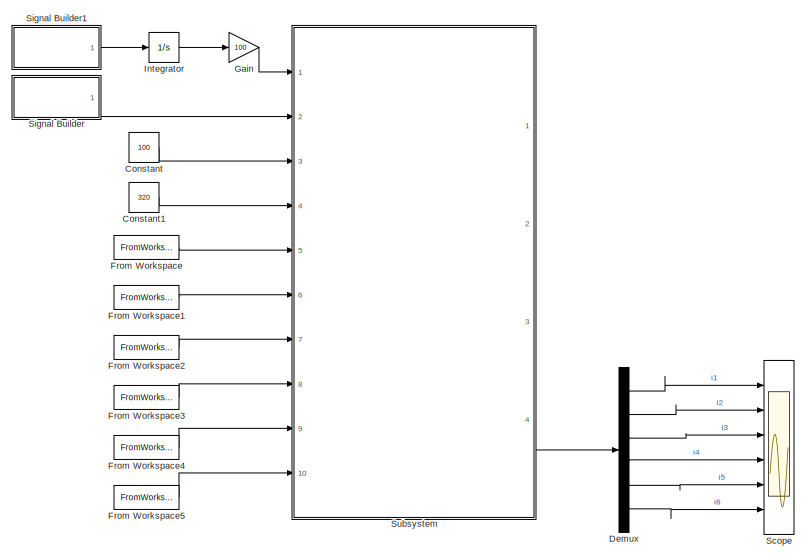
[diagram: root canvas - part 1/3, top center region]
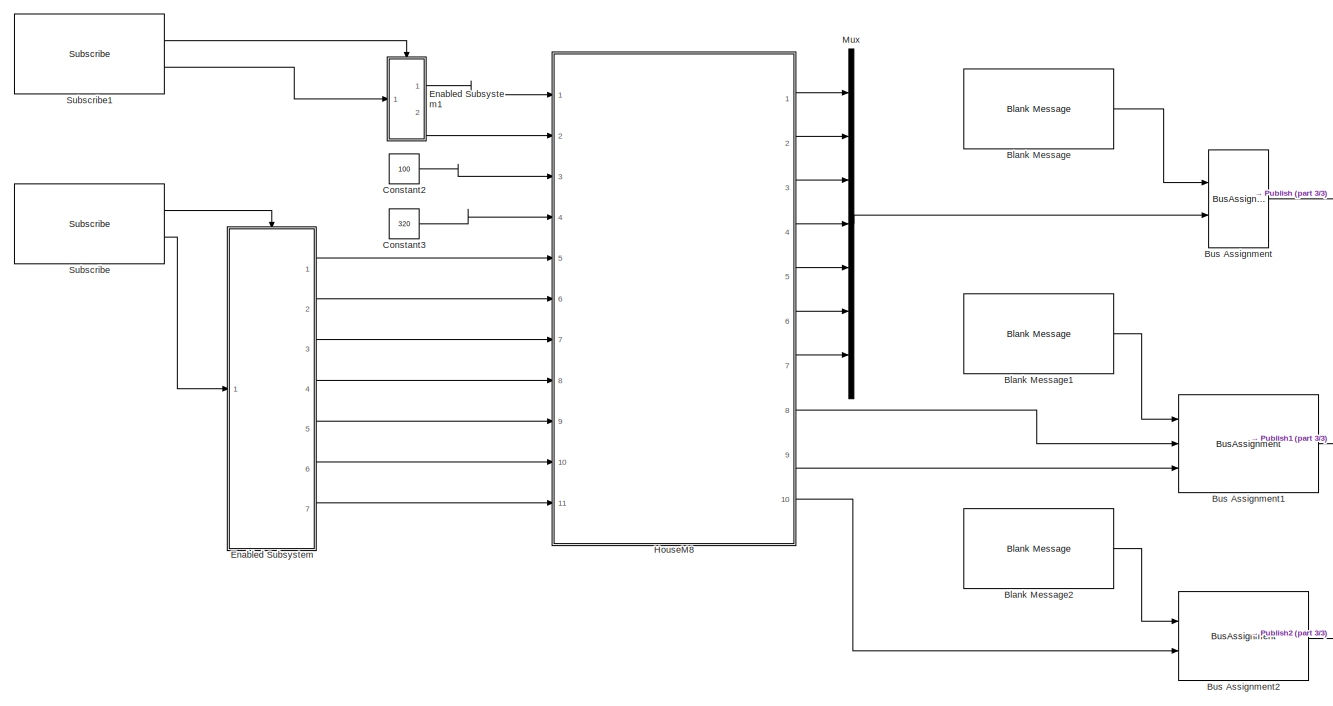
[diagram: root canvas - part 2/3, full width, bottom band]
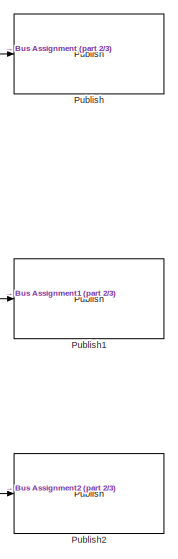
[diagram: root canvas - part 3/3, bottom right region]
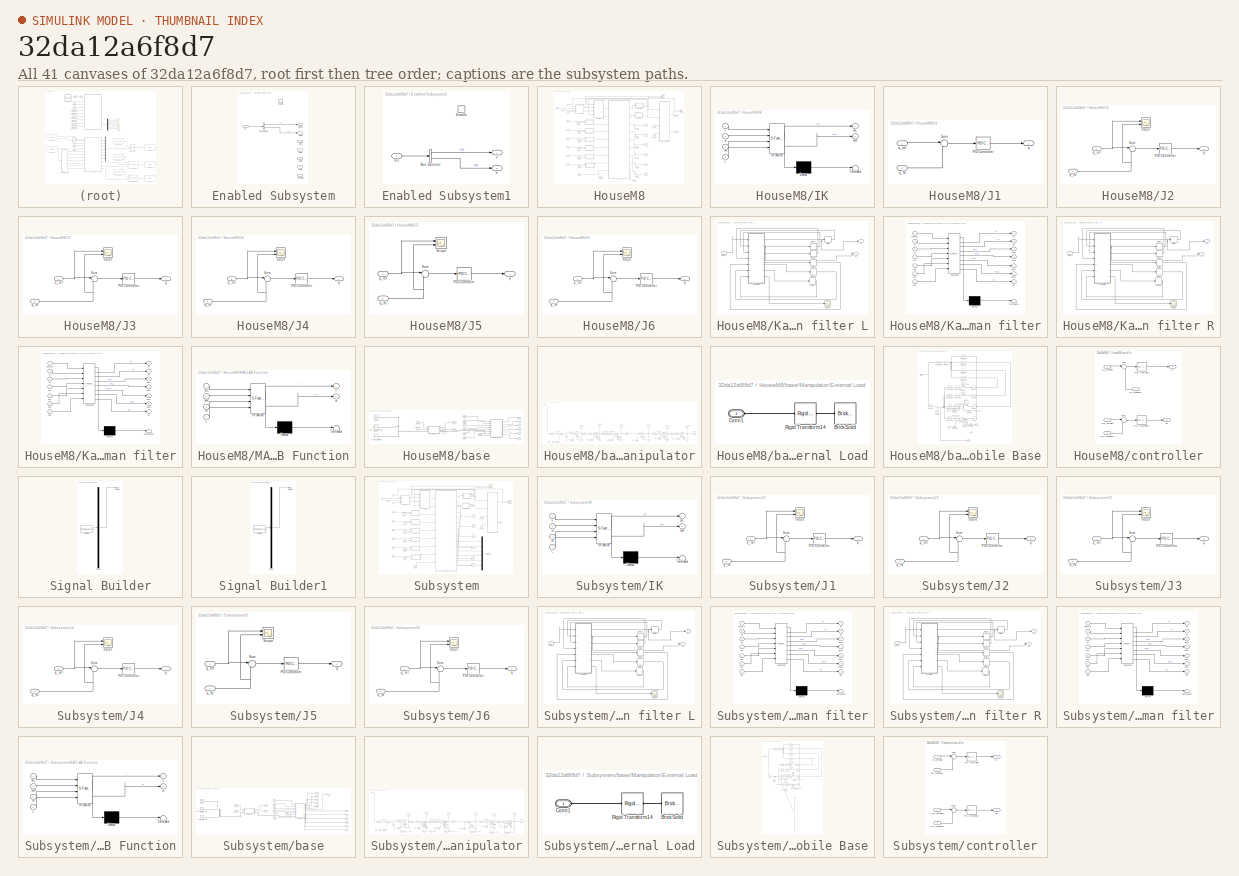
[diagram: thumbnail index - all 41 canvases of the model, root first then tree order]
MODEL slx_32da12a6f8d7
KIND model
CONFIG AbsTol = auto
CONFIG EnableMultiTasking = off
CONFIG FixedStep = 0.00005
CONFIG MaxStep = auto
CONFIG MinStep = auto
CONFIG RelTol = 1e-3
CONFIG SampleTimeConstraint = Unconstrained
CONFIG SolverName = FixedStepAuto
CONFIG StartTime = 0.0
CONFIG StopTime = 6
BLOCK [Reference] Blank Message  REF=ros2lib/Blank Message  (lib defined in slx_3c1549211f48)
  Ports = [0, 1]
  SourceBlock = ros2lib/Blank Message
  SourceProductBaseCode = RR
  SourceType = ROS2 Blank Message
BLOCK [Reference] Blank Message1  REF=ros2lib/Blank Message  (lib defined in slx_3c1549211f48)
  Ports = [0, 1]
  SourceBlock = ros2lib/Blank Message
  SourceProductBaseCode = RR
  SourceType = ROS2 Blank Message
BLOCK [Reference] Blank Message2  REF=ros2lib/Blank Message  (lib defined in slx_3c1549211f48)
  Ports = [0, 1]
  SourceBlock = ros2lib/Blank Message
  SourceProductBaseCode = RR
  SourceType = ROS2 Blank Message
BLOCK [BusAssignment] Bus Assignment
  AssignedSignals = position
  Ports = [2, 1]
BLOCK [BusAssignment] Bus Assignment1
  AssignedSignals = twist.twist.linear.x,twist.twist.angular.z
  Ports = [3, 1]
BLOCK [BusAssignment] Bus Assignment2
  AssignedSignals = angular_velocity.z
  Ports = [2, 1]
BLOCK [Constant] Constant
  Commented = on
  Value = 100
BLOCK [Constant] Constant1
  Commented = on
  Value = 320
BLOCK [Constant] Constant2
  Value = 100
BLOCK [Constant] Constant3
  Value = 320
BLOCK [Demux] Demux
  Commented = on
  Outputs = 6
  Ports = [1, 6]
BLOCK [SubSystem] Enabled Subsystem
  Ports = [1, 7, 1]
  RequestExecContextInheritance = off
BLOCK [BusSelector] Enabled Subsystem/Bus Selector
  DialogController = Simulink.DDGSource_BusSelector
  OutputSignals = x,y
  Ports = [1, 2]
BLOCK [EnablePort] Enabled Subsystem/Enable
  Ports = []
BLOCK [Inport] Enabled Subsystem/In1
BLOCK [Outport] Enabled Subsystem/joint2
  Port = 2
  VectorParamsAs1DForOutWhenUnconnected = off
BLOCK [Outport] Enabled Subsystem/joint3
  Port = 3
  VectorParamsAs1DForOutWhenUnconnected = off
BLOCK [Outport] Enabled Subsystem/joint4
  Port = 4
  VectorParamsAs1DForOutWhenUnconnected = off
BLOCK [Outport] Enabled Subsystem/joint5
  Port = 5
  VectorParamsAs1DForOutWhenUnconnected = off
BLOCK [Outport] Enabled Subsystem/joint6
  Port = 6
  VectorParamsAs1DForOutWhenUnconnected = off
BLOCK [Outport] Enabled Subsystem/prismatic
  Port = 7
  VectorParamsAs1DForOutWhenUnconnected = off
BLOCK [Outport] Enabled Subsystem/่่joint1
  VectorParamsAs1DForOutWhenUnconnected = off
BLOCK [SubSystem] Enabled Subsystem1
  Ports = [1, 2, 1]
  RequestExecContextInheritance = off
BLOCK [BusSelector] Enabled Subsystem1/Bus Selector
  DialogController = Simulink.DDGSource_BusSelector
  OutputSignals = x,y
  Ports = [1, 2]
BLOCK [EnablePort] Enabled Subsystem1/Enable
  Ports = []
BLOCK [Inport] Enabled Subsystem1/In1
BLOCK [Outport] Enabled Subsystem1/v
  VectorParamsAs1DForOutWhenUnconnected = off
BLOCK [Outport] Enabled Subsystem1/w
  Port = 2
  VectorParamsAs1DForOutWhenUnconnected = off
BLOCK [FromWorkspace] From Workspace
  Commented = on
  VariableName = q1dsim
BLOCK [FromWorkspace] From Workspace1
  Commented = on
  VariableName = q2dsim
BLOCK [FromWorkspace] From Workspace2
  Commented = on
  VariableName = q3dsim
BLOCK [FromWorkspace] From Workspace3
  Commented = on
  VariableName = q4dsim
BLOCK [FromWorkspace] From Workspace4
  Commented = on
  VariableName = q5dsim
BLOCK [FromWorkspace] From Workspace5
  Commented = on
  VariableName = q6dsim
BLOCK [Gain] Gain
  Commented = on
  Gain = 100
BLOCK [SubSystem] HouseM8
  Ports = [11, 10]
  RequestExecContextInheritance = off
BLOCK [Constant] HouseM8/Constant3
  Value = 100
BLOCK [Constant] HouseM8/Constant4
  Value = 320
BLOCK [From] HouseM8/From
  GotoTag = q6
BLOCK [From] HouseM8/From1
  GotoTag = q5
BLOCK [From] HouseM8/From2
  GotoTag = q3
BLOCK [From] HouseM8/From3
  GotoTag = q4
BLOCK [From] HouseM8/From4
  GotoTag = q2
BLOCK [From] HouseM8/From5
  GotoTag = q1
BLOCK [SubSystem] HouseM8/IK
  ErrorFcn = Stateflow.Translate.translate
  PermitHierarchicalResolution = ExplicitOnly
  Ports = [4, 2]
  RequestExecContextInheritance = off
  SFBlockType = MATLAB Function
  TreatAsAtomicUnit = on
BLOCK [Demux] HouseM8/IK/ Demux 
  Outputs = 1
  Ports = [1, 1]
BLOCK [S-Function] HouseM8/IK/ SFunction 
  EnableBusSupport = on
  FunctionName = sf_sfun
  PortCounts = [4 3]
  Ports = [4, 3]
  SFcnIsStateOwnerBlock = off
  SFunctionDeploymentMode = off
  Tag = Stateflow S-Function 5
BLOCK [Terminator] HouseM8/IK/ Terminator 
BLOCK [Inport] HouseM8/IK/L
  Port = 4
BLOCK [Inport] HouseM8/IK/R
  Port = 3
BLOCK [Inport] HouseM8/IK/v
BLOCK [Inport] HouseM8/IK/w
  Port = 2
BLOCK [Outport] HouseM8/IK/wL
BLOCK [Outport] HouseM8/IK/wR
  Port = 2
BLOCK [SubSystem] HouseM8/J1
  Ports = [2, 1]
  RequestExecContextInheritance = off
BLOCK [Reference] HouseM8/J1/PID Controller  REF=slpidlib/PID Controller
  Ports = [1, 1]
  SourceBlock = slpidlib/PID Controller
  SourceProductBaseCode = SL
  SourceType = PID 1dof
BLOCK [Sum] HouseM8/J1/Sum
  Inputs = |+-
  Ports = [2, 1]
BLOCK [Outport] HouseM8/J1/q
BLOCK [Inport] HouseM8/J1/q_fb
  Port = 2
BLOCK [Inport] HouseM8/J1/q_ref
BLOCK [SubSystem] HouseM8/J2
  Ports = [2, 1]
  RequestExecContextInheritance = off
BLOCK [Reference] HouseM8/J2/PID Controller  REF=slpidlib/PID Controller
  Ports = [1, 1]
  SourceBlock = slpidlib/PID Controller
  SourceProductBaseCode = SL
  SourceType = PID 1dof
BLOCK [Scope] HouseM8/J2/Scope
  Floating = off
  NumInputPorts = 2
  Ports = [2]
  ScopeSpecificationString = Simulink.scopes.TimeScopeBlockCfg('CurrentConfiguration', extmgr.ConfigurationSet(extmgr.Configuration('Core','General UI',true),extmgr.Configuration('Core','Source UI',true),extmgr.Configuration('Sources','WiredSimulink',true),extmgr.Configuration('Visuals','Time Domain',true,'SerializedDisplays',{struct('MinYLimReal','-1.17788','MaxYLimReal','0.13088','YLabelReal','','MinYLimMag','0.00000','MaxY...<+1428ch>  <repeated x4 — deduplicated; at blocks: Scope>
BLOCK [Sum] HouseM8/J2/Sum
  Inputs = |+-
  Ports = [2, 1]
BLOCK [Outport] HouseM8/J2/q
BLOCK [Inport] HouseM8/J2/q_fb
  Port = 2
BLOCK [Inport] HouseM8/J2/q_ref
BLOCK [SubSystem] HouseM8/J3
  Ports = [2, 1]
  RequestExecContextInheritance = off
BLOCK [Reference] HouseM8/J3/PID Controller  REF=slpidlib/PID Controller
  Ports = [1, 1]
  SourceBlock = slpidlib/PID Controller
  SourceProductBaseCode = SL
  SourceType = PID 1dof
BLOCK [Scope] HouseM8/J3/Scope
  Floating = off
  NumInputPorts = 2
  Ports = [2]
  ScopeSpecificationString = Simulink.scopes.TimeScopeBlockCfg('CurrentConfiguration', extmgr.ConfigurationSet(extmgr.Configuration('Core','General UI',true),extmgr.Configuration('Core','Source UI',true),extmgr.Configuration('Sources','WiredSimulink',true),extmgr.Configuration('Visuals','Time Domain',true,'SerializedDisplays',{struct('MinYLimReal','-0.13088','MaxYLimReal','1.17788','YLabelReal','','MinYLimMag','0.00000','MaxY...<+1428ch>  <repeated x7 — deduplicated; at blocks: Scope>
BLOCK [Sum] HouseM8/J3/Sum
  Inputs = |+-
  Ports = [2, 1]
BLOCK [Outport] HouseM8/J3/q
BLOCK [Inport] HouseM8/J3/q_fb
  Port = 2
BLOCK [Inport] HouseM8/J3/q_ref
BLOCK [SubSystem] HouseM8/J4
  Ports = [2, 1]
  RequestExecContextInheritance = off
BLOCK [Reference] HouseM8/J4/PID Controller  REF=slpidlib/PID Controller
  Ports = [1, 1]
  SourceBlock = slpidlib/PID Controller
  SourceProductBaseCode = SL
  SourceType = PID 1dof
BLOCK [Scope] HouseM8/J4/Scope
  Floating = off
  NumInputPorts = 2
  Ports = [2]
BLOCK [Sum] HouseM8/J4/Sum
  Inputs = |+-
  Ports = [2, 1]
BLOCK [Outport] HouseM8/J4/q
BLOCK [Inport] HouseM8/J4/q_fb
  Port = 2
BLOCK [Inport] HouseM8/J4/q_ref
BLOCK [SubSystem] HouseM8/J5
  Ports = [2, 1]
  RequestExecContextInheritance = off
BLOCK [Reference] HouseM8/J5/PID Controller  REF=slpidlib/PID Controller
  Ports = [1, 1]
  SourceBlock = slpidlib/PID Controller
  SourceProductBaseCode = SL
  SourceType = PID 1dof
BLOCK [Scope] HouseM8/J5/Scope
  Floating = off
  NumInputPorts = 2
  Ports = [2]
BLOCK [Sum] HouseM8/J5/Sum
  Inputs = |+-
  Ports = [2, 1]
BLOCK [Outport] HouseM8/J5/q
BLOCK [Inport] HouseM8/J5/q_fb
  Port = 2
BLOCK [Inport] HouseM8/J5/q_ref
BLOCK [SubSystem] HouseM8/J6
  Ports = [2, 1]
  RequestExecContextInheritance = off
BLOCK [Reference] HouseM8/J6/PID Controller  REF=slpidlib/PID Controller
  Ports = [1, 1]
  SourceBlock = slpidlib/PID Controller
  SourceProductBaseCode = SL
  SourceType = PID 1dof
BLOCK [Scope] HouseM8/J6/Scope
  Floating = off
  NumInputPorts = 2
  Ports = [2]
BLOCK [Sum] HouseM8/J6/Sum
  Inputs = |+-
  Ports = [2, 1]
BLOCK [Outport] HouseM8/J6/q
BLOCK [Inport] HouseM8/J6/q_fb
  Port = 2
BLOCK [Inport] HouseM8/J6/q_ref
BLOCK [SubSystem] HouseM8/Kalman filter L
  Ports = [1, 2]
  RequestExecContextInheritance = off
BLOCK [Delay] HouseM8/Kalman filter L/Delay
  DelayLength = 1
  InputPortMap = u0
  Ports = [1, 1]
  SampleTime = 0.0001
BLOCK [Delay] HouseM8/Kalman filter L/Delay1
  DelayLength = 1
  InputPortMap = u0
  Ports = [1, 1]
  SampleTime = 0.0001
BLOCK [Delay] HouseM8/Kalman filter L/Delay2
  DelayLength = 1
  InputPortMap = u0
  Ports = [1, 1]
  SampleTime = 0.0001
BLOCK [Delay] HouseM8/Kalman filter L/Delay3
  DelayLength = 1
  InputPortMap = u0
  Ports = [1, 1]
  SampleTime = 0.0001
BLOCK [Delay] HouseM8/Kalman filter L/Delay4
  DelayLength = 1
  InputPortMap = u0
  Ports = [1, 1]
  SampleTime = 0.0001
BLOCK [Delay] HouseM8/Kalman filter L/Delay5
  DelayLength = 1
  InputPortMap = u0
  Ports = [1, 1]
  SampleTime = 0.0001
BLOCK [SubSystem] HouseM8/Kalman filter L/Kalman filter
  ErrorFcn = Stateflow.Translate.translate
  PermitHierarchicalResolution = ExplicitOnly
  Ports = [7, 7]
  RequestExecContextInheritance = off
  SFBlockType = MATLAB Function
  TreatAsAtomicUnit = on
BLOCK [Demux] HouseM8/Kalman filter L/Kalman filter/ Demux 
  Outputs = 1
  Ports = [1, 1]
BLOCK [S-Function] HouseM8/Kalman filter L/Kalman filter/ SFunction 
  EnableBusSupport = on
  FunctionName = sf_sfun
  PortCounts = [7 8]
  Ports = [7, 8]
  SFcnIsStateOwnerBlock = off
  SFunctionDeploymentMode = off
  Tag = Stateflow S-Function 6
BLOCK [Terminator] HouseM8/Kalman filter L/Kalman filter/ Terminator 
BLOCK [Inport] HouseM8/Kalman filter L/Kalman filter/P11
  Port = 4
BLOCK [Inport] HouseM8/Kalman filter L/Kalman filter/P12
  Port = 5
BLOCK [Inport] HouseM8/Kalman filter L/Kalman filter/P21
  Port = 6
BLOCK [Inport] HouseM8/Kalman filter L/Kalman filter/P22
  Port = 7
BLOCK [Outport] HouseM8/Kalman filter L/Kalman filter/PP11
  Port = 3
BLOCK [Outport] HouseM8/Kalman filter L/Kalman filter/PP12
  Port = 4
BLOCK [Outport] HouseM8/Kalman filter L/Kalman filter/PP21
  Port = 5
BLOCK [Outport] HouseM8/Kalman filter L/Kalman filter/PP22
  Port = 6
BLOCK [Outport] HouseM8/Kalman filter L/Kalman filter/X1
BLOCK [Inport] HouseM8/Kalman filter L/Kalman filter/X1 
  Port = 2
BLOCK [Outport] HouseM8/Kalman filter L/Kalman filter/X2
  Port = 2
BLOCK [Inport] HouseM8/Kalman filter L/Kalman filter/X2 
  Port = 3
BLOCK [Outport] HouseM8/Kalman filter L/Kalman filter/dP
  Port = 7
BLOCK [Inport] HouseM8/Kalman filter L/Kalman filter/theta_k
BLOCK [Scope] HouseM8/Kalman filter L/Scope
  Floating = off
  NumInputPorts = 1
  Ports = [1]
  ScopeSpecificationString = Simulink.scopes.TimeScopeBlockCfg('CurrentConfiguration', extmgr.ConfigurationSet(extmgr.Configuration('Core','General UI',true),extmgr.Configuration('Core','Source UI',true),extmgr.Configuration('Sources','WiredSimulink',true,'DataLoggingVariableName','ScopeData1'),extmgr.Configuration('Visuals','Time Domain',true,'SerializedDisplays',{struct('MinYLimReal','-0.00000000008','MaxYLimReal','0.000000...<+1478ch>
BLOCK [Outport] HouseM8/Kalman filter L/X1
BLOCK [Outport] HouseM8/Kalman filter L/X2
  Port = 2
BLOCK [Inport] HouseM8/Kalman filter L/theta_k
BLOCK [SubSystem] HouseM8/Kalman filter R
  Ports = [1, 2]
  RequestExecContextInheritance = off
BLOCK [Delay] HouseM8/Kalman filter R/Delay
  DelayLength = 1
  InputPortMap = u0
  Ports = [1, 1]
  SampleTime = 0.0001
BLOCK [Delay] HouseM8/Kalman filter R/Delay1
  DelayLength = 1
  InputPortMap = u0
  Ports = [1, 1]
  SampleTime = 0.0001
BLOCK [Delay] HouseM8/Kalman filter R/Delay2
  DelayLength = 1
  InputPortMap = u0
  Ports = [1, 1]
  SampleTime = 0.0001
BLOCK [Delay] HouseM8/Kalman filter R/Delay3
  DelayLength = 1
  InputPortMap = u0
  Ports = [1, 1]
  SampleTime = 0.0001
BLOCK [Delay] HouseM8/Kalman filter R/Delay4
  DelayLength = 1
  InputPortMap = u0
  Ports = [1, 1]
  SampleTime = 0.0001
BLOCK [Delay] HouseM8/Kalman filter R/Delay5
  DelayLength = 1
  InputPortMap = u0
  Ports = [1, 1]
  SampleTime = 0.0001
BLOCK [SubSystem] HouseM8/Kalman filter R/Kalman filter
  ErrorFcn = Stateflow.Translate.translate
  PermitHierarchicalResolution = ExplicitOnly
  Ports = [7, 7]
  RequestExecContextInheritance = off
  SFBlockType = MATLAB Function
  TreatAsAtomicUnit = on
BLOCK [Demux] HouseM8/Kalman filter R/Kalman filter/ Demux 
  Outputs = 1
  Ports = [1, 1]
BLOCK [S-Function] HouseM8/Kalman filter R/Kalman filter/ SFunction 
  EnableBusSupport = on
  FunctionName = sf_sfun
  PortCounts = [7 8]
  Ports = [7, 8]
  SFcnIsStateOwnerBlock = off
  SFunctionDeploymentMode = off
  Tag = Stateflow S-Function 7
BLOCK [Terminator] HouseM8/Kalman filter R/Kalman filter/ Terminator 
BLOCK [Inport] HouseM8/Kalman filter R/Kalman filter/P11
  Port = 4
BLOCK [Inport] HouseM8/Kalman filter R/Kalman filter/P12
  Port = 5
BLOCK [Inport] HouseM8/Kalman filter R/Kalman filter/P21
  Port = 6
BLOCK [Inport] HouseM8/Kalman filter R/Kalman filter/P22
  Port = 7
BLOCK [Outport] HouseM8/Kalman filter R/Kalman filter/PP11
  Port = 3
BLOCK [Outport] HouseM8/Kalman filter R/Kalman filter/PP12
  Port = 4
BLOCK [Outport] HouseM8/Kalman filter R/Kalman filter/PP21
  Port = 5
BLOCK [Outport] HouseM8/Kalman filter R/Kalman filter/PP22
  Port = 6
BLOCK [Outport] HouseM8/Kalman filter R/Kalman filter/X1
BLOCK [Inport] HouseM8/Kalman filter R/Kalman filter/X1 
  Port = 2
BLOCK [Outport] HouseM8/Kalman filter R/Kalman filter/X2
  Port = 2
BLOCK [Inport] HouseM8/Kalman filter R/Kalman filter/X2 
  Port = 3
BLOCK [Outport] HouseM8/Kalman filter R/Kalman filter/dP
  Port = 7
BLOCK [Inport] HouseM8/Kalman filter R/Kalman filter/theta_k
BLOCK [Scope] HouseM8/Kalman filter R/Scope
  Floating = off
  NumInputPorts = 1
  Ports = [1]
  ScopeSpecificationString = Simulink.scopes.TimeScopeBlockCfg('CurrentConfiguration', extmgr.ConfigurationSet(extmgr.Configuration('Core','General UI',true),extmgr.Configuration('Core','Source UI',true),extmgr.Configuration('Sources','WiredSimulink',true,'DataLoggingVariableName','ScopeData1'),extmgr.Configuration('Visuals','Time Domain',true,'SerializedDisplays',{struct('MinYLimReal','-0.00000000008','MaxYLimReal','0.000000...<+1465ch>
BLOCK [Outport] HouseM8/Kalman filter R/X1
BLOCK [Outport] HouseM8/Kalman filter R/X2
  Port = 2
BLOCK [Inport] HouseM8/Kalman filter R/theta_k
BLOCK [Inport] HouseM8/L
  Port = 4
BLOCK [SubSystem] HouseM8/MATLAB Function
  ErrorFcn = Stateflow.Translate.translate
  PermitHierarchicalResolution = ExplicitOnly
  Ports = [4, 2]
  RequestExecContextInheritance = off
  SFBlockType = MATLAB Function
  TreatAsAtomicUnit = on
BLOCK [Demux] HouseM8/MATLAB Function/ Demux 
  Outputs = 1
  Ports = [1, 1]
BLOCK [S-Function] HouseM8/MATLAB Function/ SFunction 
  EnableBusSupport = on
  FunctionName = sf_sfun
  PortCounts = [4 3]
  Ports = [4, 3]
  SFcnIsStateOwnerBlock = off
  SFunctionDeploymentMode = off
  Tag = Stateflow S-Function 8
BLOCK [Terminator] HouseM8/MATLAB Function/ Terminator 
BLOCK [Inport] HouseM8/MATLAB Function/L
  Port = 4
BLOCK [Inport] HouseM8/MATLAB Function/R
  Port = 3
BLOCK [Outport] HouseM8/MATLAB Function/v
BLOCK [Outport] HouseM8/MATLAB Function/w
  Port = 2
BLOCK [Inport] HouseM8/MATLAB Function/wL
BLOCK [Inport] HouseM8/MATLAB Function/wR
  Port = 2
BLOCK [Inport] HouseM8/R
  Port = 3
BLOCK [Scope] HouseM8/Scope
  Floating = off
  NumInputPorts = 2
  Ports = [2]
  ScopeSpecificationString = Simulink.scopes.TimeScopeBlockCfg('CurrentConfiguration', extmgr.ConfigurationSet(extmgr.Configuration('Core','General UI',true),extmgr.Configuration('Core','Source UI',true),extmgr.Configuration('Sources','WiredSimulink',true,'DataLoggingVariableName','ScopeData1'),extmgr.Configuration('Visuals','Time Domain',true,'SerializedDisplays',{struct('MinYLimReal','-58.91335','MaxYLimReal','478.76815','Y...<+1422ch>
BLOCK [Scope] HouseM8/Scope1
  Floating = off
  NumInputPorts = 2
  Ports = [2]
  ScopeSpecificationString = Simulink.scopes.TimeScopeBlockCfg('CurrentConfiguration', extmgr.ConfigurationSet(extmgr.Configuration('Core','General UI',true),extmgr.Configuration('Core','Source UI',true),extmgr.Configuration('Sources','WiredSimulink',true,'DataLoggingVariableName','ScopeData2'),extmgr.Configuration('Visuals','Time Domain',true,'SerializedDisplays',{struct('MinYLimReal','-0.01708','MaxYLimReal','0.15376','YLab...<+1415ch>
BLOCK [SubSystem] HouseM8/base
  Ports = [9, 9]
  RequestExecContextInheritance = off
BLOCK [Inport] HouseM8/base/Joint1
  Port = 3
BLOCK [Inport] HouseM8/base/Joint2
  Port = 4
BLOCK [Inport] HouseM8/base/Joint3
  Port = 5
BLOCK [Inport] HouseM8/base/Joint4
  Port = 6
BLOCK [Inport] HouseM8/base/Joint5
  Port = 7
BLOCK [Inport] HouseM8/base/Joint6
  Port = 8
BLOCK [Inport] HouseM8/base/L_wheel
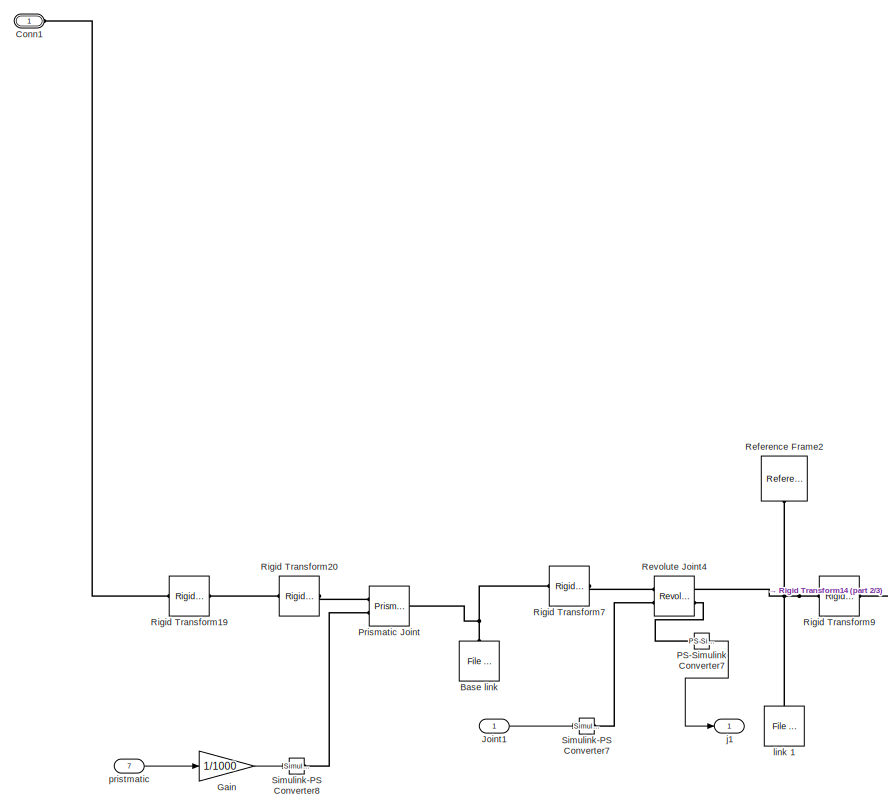
[diagram: HouseM8/base/Manipulator - part 1/3, left side, full height]
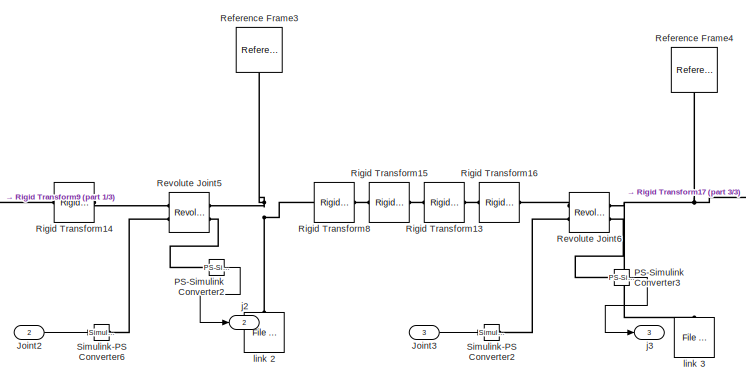
[diagram: HouseM8/base/Manipulator - part 2/3, bottom center region]
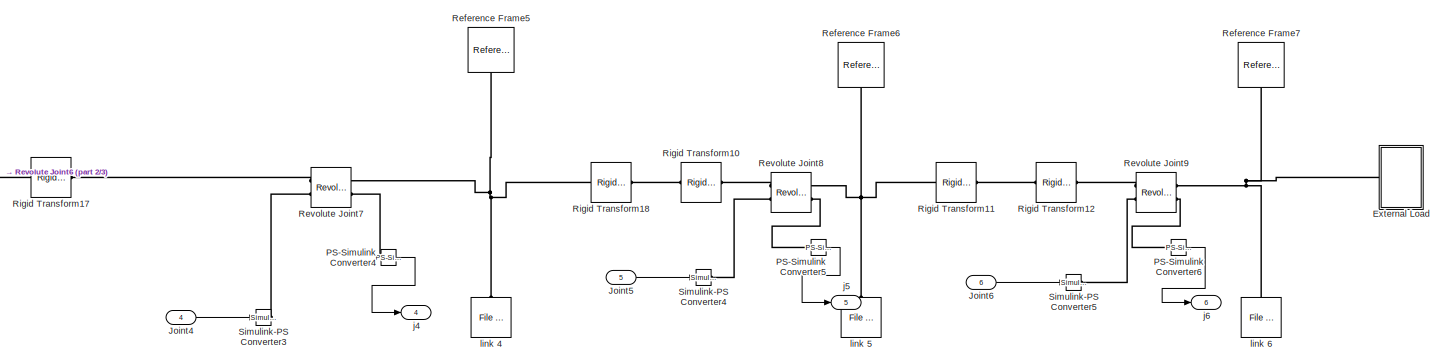
[diagram: HouseM8/base/Manipulator - part 3/3, bottom right region]
BLOCK [SubSystem] HouseM8/base/Manipulator
  Ports = [7, 6, 0, 0, 0, 1]
  RequestExecContextInheritance = off
BLOCK [Reference] HouseM8/base/Manipulator/Base link  REF=sm_lib/Body Elements/File Solid
  NameLocation = right
  Ports = [0, 0, 0, 0, 0, 0, 1]
  SourceBlock = sm_lib/Body Elements/File Solid
  SourceProductBaseCode = MS
  SourceType = File Solid
BLOCK [PMIOPort] HouseM8/base/Manipulator/Conn1
  Side = Left
BLOCK [SubSystem] HouseM8/base/Manipulator/External Load
  Ports = [0, 0, 0, 0, 0, 1]
  RequestExecContextInheritance = off
BLOCK [Reference] HouseM8/base/Manipulator/External Load/Brick Solid  REF=sm_lib/Body Elements/Brick Solid
  NameLocation = top
  Ports = [0, 0, 0, 0, 0, 0, 1]
  SourceBlock = sm_lib/Body Elements/Brick Solid
  SourceProductBaseCode = MS
  SourceType = Brick Solid
BLOCK [PMIOPort] HouseM8/base/Manipulator/External Load/Conn1
  Side = Left
BLOCK [Reference] HouseM8/base/Manipulator/External Load/Rigid Transform14  REF=sm_lib/Frames and
Transforms/Rigid
Transform
  Ports = [0, 0, 0, 0, 0, 1, 1]
  SourceBlock = sm_lib/Frames and\nTransforms/Rigid\nTransform
  SourceProductBaseCode = MS
  SourceType = Rigid\nTransform
BLOCK [Gain] HouseM8/base/Manipulator/Gain
  Gain = 1/1000
BLOCK [Inport] HouseM8/base/Manipulator/Joint1
BLOCK [Inport] HouseM8/base/Manipulator/Joint2
  Port = 2
BLOCK [Inport] HouseM8/base/Manipulator/Joint3
  Port = 3
BLOCK [Inport] HouseM8/base/Manipulator/Joint4
  Port = 4
BLOCK [Inport] HouseM8/base/Manipulator/Joint5
  Port = 5
BLOCK [Inport] HouseM8/base/Manipulator/Joint6
  Port = 6
BLOCK [Reference] HouseM8/base/Manipulator/PS-Simulink Converter2  REF=nesl_utility/PS-Simulink
Converter
  Ports = [0, 1, 0, 0, 0, 1]
  SourceBlock = nesl_utility/PS-Simulink\nConverter
  SourceProductBaseCode = PW,SS
  SourceType = PS-Simulink\nConverter
BLOCK [Reference] HouseM8/base/Manipulator/PS-Simulink Converter3  REF=nesl_utility/PS-Simulink
Converter
  Ports = [0, 1, 0, 0, 0, 1]
  SourceBlock = nesl_utility/PS-Simulink\nConverter
  SourceProductBaseCode = PW,SS
  SourceType = PS-Simulink\nConverter
BLOCK [Reference] HouseM8/base/Manipulator/PS-Simulink Converter4  REF=nesl_utility/PS-Simulink
Converter
  Ports = [0, 1, 0, 0, 0, 1]
  SourceBlock = nesl_utility/PS-Simulink\nConverter
  SourceProductBaseCode = PW,SS
  SourceType = PS-Simulink\nConverter
BLOCK [Reference] HouseM8/base/Manipulator/PS-Simulink Converter5  REF=nesl_utility/PS-Simulink
Converter
  Ports = [0, 1, 0, 0, 0, 1]
  SourceBlock = nesl_utility/PS-Simulink\nConverter
  SourceProductBaseCode = PW,SS
  SourceType = PS-Simulink\nConverter
BLOCK [Reference] HouseM8/base/Manipulator/PS-Simulink Converter6  REF=nesl_utility/PS-Simulink
Converter
  Ports = [0, 1, 0, 0, 0, 1]
  SourceBlock = nesl_utility/PS-Simulink\nConverter
  SourceProductBaseCode = PW,SS
  SourceType = PS-Simulink\nConverter
BLOCK [Reference] HouseM8/base/Manipulator/PS-Simulink Converter7  REF=nesl_utility/PS-Simulink
Converter
  Ports = [0, 1, 0, 0, 0, 1]
  SourceBlock = nesl_utility/PS-Simulink\nConverter
  SourceProductBaseCode = PW,SS
  SourceType = PS-Simulink\nConverter
BLOCK [Reference] HouseM8/base/Manipulator/Prismatic Joint  REF=sm_lib/Joints/Prismatic
Joint
  Ports = [0, 0, 0, 0, 0, 2, 1]
  SourceBlock = sm_lib/Joints/Prismatic\nJoint
  SourceProductBaseCode = MS
  SourceType = Prismatic\nJoint
BLOCK [Reference] HouseM8/base/Manipulator/Reference Frame2  REF=sm_lib/Frames and
Transforms/Reference
Frame
  NameLocation = left
  Ports = [0, 0, 0, 0, 0, 0, 1]
  SourceBlock = sm_lib/Frames and\nTransforms/Reference\nFrame
  SourceProductBaseCode = MS
  SourceType = Reference\nFrame
BLOCK [Reference] HouseM8/base/Manipulator/Reference Frame3  REF=sm_lib/Frames and
Transforms/Reference
Frame
  NameLocation = left
  Ports = [0, 0, 0, 0, 0, 0, 1]
  SourceBlock = sm_lib/Frames and\nTransforms/Reference\nFrame
  SourceProductBaseCode = MS
  SourceType = Reference\nFrame
BLOCK [Reference] HouseM8/base/Manipulator/Reference Frame4  REF=sm_lib/Frames and
Transforms/Reference
Frame
  NameLocation = left
  Ports = [0, 0, 0, 0, 0, 0, 1]
  SourceBlock = sm_lib/Frames and\nTransforms/Reference\nFrame
  SourceProductBaseCode = MS
  SourceType = Reference\nFrame
BLOCK [Reference] HouseM8/base/Manipulator/Reference Frame5  REF=sm_lib/Frames and
Transforms/Reference
Frame
  NameLocation = left
  Ports = [0, 0, 0, 0, 0, 0, 1]
  SourceBlock = sm_lib/Frames and\nTransforms/Reference\nFrame
  SourceProductBaseCode = MS
  SourceType = Reference\nFrame
BLOCK [Reference] HouseM8/base/Manipulator/Reference Frame6  REF=sm_lib/Frames and
Transforms/Reference
Frame
  NameLocation = left
  Ports = [0, 0, 0, 0, 0, 0, 1]
  SourceBlock = sm_lib/Frames and\nTransforms/Reference\nFrame
  SourceProductBaseCode = MS
  SourceType = Reference\nFrame
BLOCK [Reference] HouseM8/base/Manipulator/Reference Frame7  REF=sm_lib/Frames and
Transforms/Reference
Frame
  NameLocation = left
  Ports = [0, 0, 0, 0, 0, 0, 1]
  SourceBlock = sm_lib/Frames and\nTransforms/Reference\nFrame
  SourceProductBaseCode = MS
  SourceType = Reference\nFrame
BLOCK [Reference] HouseM8/base/Manipulator/Revolute Joint4  REF=sm_lib/Joints/Revolute Joint
  Ports = [0, 0, 0, 0, 0, 2, 2]
  SourceBlock = sm_lib/Joints/Revolute Joint
  SourceProductBaseCode = MS
  SourceType = Revolute Joint
BLOCK [Reference] HouseM8/base/Manipulator/Revolute Joint5  REF=sm_lib/Joints/Revolute Joint
  Ports = [0, 0, 0, 0, 0, 2, 2]
  SourceBlock = sm_lib/Joints/Revolute Joint
  SourceProductBaseCode = MS
  SourceType = Revolute Joint
BLOCK [Reference] HouseM8/base/Manipulator/Revolute Joint6  REF=sm_lib/Joints/Revolute Joint
  Ports = [0, 0, 0, 0, 0, 2, 2]
  SourceBlock = sm_lib/Joints/Revolute Joint
  SourceProductBaseCode = MS
  SourceType = Revolute Joint
BLOCK [Reference] HouseM8/base/Manipulator/Revolute Joint7  REF=sm_lib/Joints/Revolute Joint
  Ports = [0, 0, 0, 0, 0, 2, 2]
  SourceBlock = sm_lib/Joints/Revolute Joint
  SourceProductBaseCode = MS
  SourceType = Revolute Joint
BLOCK [Reference] HouseM8/base/Manipulator/Revolute Joint8  REF=sm_lib/Joints/Revolute Joint
  Ports = [0, 0, 0, 0, 0, 2, 2]
  SourceBlock = sm_lib/Joints/Revolute Joint
  SourceProductBaseCode = MS
  SourceType = Revolute Joint
BLOCK [Reference] HouseM8/base/Manipulator/Revolute Joint9  REF=sm_lib/Joints/Revolute Joint
  Ports = [0, 0, 0, 0, 0, 2, 2]
  SourceBlock = sm_lib/Joints/Revolute Joint
  SourceProductBaseCode = MS
  SourceType = Revolute Joint
BLOCK [Reference] HouseM8/base/Manipulator/Rigid Transform10  REF=sm_lib/Frames and
Transforms/Rigid
Transform
  Ports = [0, 0, 0, 0, 0, 1, 1]
  SourceBlock = sm_lib/Frames and\nTransforms/Rigid\nTransform
  SourceProductBaseCode = MS
  SourceType = Rigid\nTransform
BLOCK [Reference] HouseM8/base/Manipulator/Rigid Transform11  REF=sm_lib/Frames and
Transforms/Rigid
Transform
  Ports = [0, 0, 0, 0, 0, 1, 1]
  SourceBlock = sm_lib/Frames and\nTransforms/Rigid\nTransform
  SourceProductBaseCode = MS
  SourceType = Rigid\nTransform
BLOCK [Reference] HouseM8/base/Manipulator/Rigid Transform12  REF=sm_lib/Frames and
Transforms/Rigid
Transform
  Ports = [0, 0, 0, 0, 0, 1, 1]
  SourceBlock = sm_lib/Frames and\nTransforms/Rigid\nTransform
  SourceProductBaseCode = MS
  SourceType = Rigid\nTransform
BLOCK [Reference] HouseM8/base/Manipulator/Rigid Transform13  REF=sm_lib/Frames and
Transforms/Rigid
Transform
  Ports = [0, 0, 0, 0, 0, 1, 1]
  SourceBlock = sm_lib/Frames and\nTransforms/Rigid\nTransform
  SourceProductBaseCode = MS
  SourceType = Rigid\nTransform
BLOCK [Reference] HouseM8/base/Manipulator/Rigid Transform14  REF=sm_lib/Frames and
Transforms/Rigid
Transform
  Ports = [0, 0, 0, 0, 0, 1, 1]
  SourceBlock = sm_lib/Frames and\nTransforms/Rigid\nTransform
  SourceProductBaseCode = MS
  SourceType = Rigid\nTransform
BLOCK [Reference] HouseM8/base/Manipulator/Rigid Transform15  REF=sm_lib/Frames and
Transforms/Rigid
Transform
  Ports = [0, 0, 0, 0, 0, 1, 1]
  SourceBlock = sm_lib/Frames and\nTransforms/Rigid\nTransform
  SourceProductBaseCode = MS
  SourceType = Rigid\nTransform
BLOCK [Reference] HouseM8/base/Manipulator/Rigid Transform16  REF=sm_lib/Frames and
Transforms/Rigid
Transform
  Ports = [0, 0, 0, 0, 0, 1, 1]
  SourceBlock = sm_lib/Frames and\nTransforms/Rigid\nTransform
  SourceProductBaseCode = MS
  SourceType = Rigid\nTransform
BLOCK [Reference] HouseM8/base/Manipulator/Rigid Transform17  REF=sm_lib/Frames and
Transforms/Rigid
Transform
  Ports = [0, 0, 0, 0, 0, 1, 1]
  SourceBlock = sm_lib/Frames and\nTransforms/Rigid\nTransform
  SourceProductBaseCode = MS
  SourceType = Rigid\nTransform
BLOCK [Reference] HouseM8/base/Manipulator/Rigid Transform18  REF=sm_lib/Frames and
Transforms/Rigid
Transform
  Ports = [0, 0, 0, 0, 0, 1, 1]
  SourceBlock = sm_lib/Frames and\nTransforms/Rigid\nTransform
  SourceProductBaseCode = MS
  SourceType = Rigid\nTransform
BLOCK [Reference] HouseM8/base/Manipulator/Rigid Transform19  REF=sm_lib/Frames and
Transforms/Rigid
Transform
  Ports = [0, 0, 0, 0, 0, 1, 1]
  SourceBlock = sm_lib/Frames and\nTransforms/Rigid\nTransform
  SourceProductBaseCode = MS
  SourceType = Rigid\nTransform
BLOCK [Reference] HouseM8/base/Manipulator/Rigid Transform20  REF=sm_lib/Frames and
Transforms/Rigid
Transform
  Ports = [0, 0, 0, 0, 0, 1, 1]
  SourceBlock = sm_lib/Frames and\nTransforms/Rigid\nTransform
  SourceProductBaseCode = MS
  SourceType = Rigid\nTransform
BLOCK [Reference] HouseM8/base/Manipulator/Rigid Transform7  REF=sm_lib/Frames and
Transforms/Rigid
Transform
  Ports = [0, 0, 0, 0, 0, 1, 1]
  SourceBlock = sm_lib/Frames and\nTransforms/Rigid\nTransform
  SourceProductBaseCode = MS
  SourceType = Rigid\nTransform
BLOCK [Reference] HouseM8/base/Manipulator/Rigid Transform8  REF=sm_lib/Frames and
Transforms/Rigid
Transform
  Ports = [0, 0, 0, 0, 0, 1, 1]
  SourceBlock = sm_lib/Frames and\nTransforms/Rigid\nTransform
  SourceProductBaseCode = MS
  SourceType = Rigid\nTransform
BLOCK [Reference] HouseM8/base/Manipulator/Rigid Transform9  REF=sm_lib/Frames and
Transforms/Rigid
Transform
  Ports = [0, 0, 0, 0, 0, 1, 1]
  SourceBlock = sm_lib/Frames and\nTransforms/Rigid\nTransform
  SourceProductBaseCode = MS
  SourceType = Rigid\nTransform
BLOCK [Reference] HouseM8/base/Manipulator/Simulink-PS Converter2  REF=nesl_utility/Simulink-PS
Converter
  Ports = [1, 0, 0, 0, 0, 0, 1]
  SourceBlock = nesl_utility/Simulink-PS\nConverter
  SourceProductBaseCode = PW,SS
  SourceType = Simulink-PS\nConverter
BLOCK [Reference] HouseM8/base/Manipulator/Simulink-PS Converter3  REF=nesl_utility/Simulink-PS
Converter
  Ports = [1, 0, 0, 0, 0, 0, 1]
  SourceBlock = nesl_utility/Simulink-PS\nConverter
  SourceProductBaseCode = PW,SS
  SourceType = Simulink-PS\nConverter
BLOCK [Reference] HouseM8/base/Manipulator/Simulink-PS Converter4  REF=nesl_utility/Simulink-PS
Converter
  Ports = [1, 0, 0, 0, 0, 0, 1]
  SourceBlock = nesl_utility/Simulink-PS\nConverter
  SourceProductBaseCode = PW,SS
  SourceType = Simulink-PS\nConverter
BLOCK [Reference] HouseM8/base/Manipulator/Simulink-PS Converter5  REF=nesl_utility/Simulink-PS
Converter
  Ports = [1, 0, 0, 0, 0, 0, 1]
  SourceBlock = nesl_utility/Simulink-PS\nConverter
  SourceProductBaseCode = PW,SS
  SourceType = Simulink-PS\nConverter
BLOCK [Reference] HouseM8/base/Manipulator/Simulink-PS Converter6  REF=nesl_utility/Simulink-PS
Converter
  Ports = [1, 0, 0, 0, 0, 0, 1]
  SourceBlock = nesl_utility/Simulink-PS\nConverter
  SourceProductBaseCode = PW,SS
  SourceType = Simulink-PS\nConverter
BLOCK [Reference] HouseM8/base/Manipulator/Simulink-PS Converter7  REF=nesl_utility/Simulink-PS
Converter
  Ports = [1, 0, 0, 0, 0, 0, 1]
  SourceBlock = nesl_utility/Simulink-PS\nConverter
  SourceProductBaseCode = PW,SS
  SourceType = Simulink-PS\nConverter
BLOCK [Reference] HouseM8/base/Manipulator/Simulink-PS Converter8  REF=nesl_utility/Simulink-PS
Converter
  Ports = [1, 0, 0, 0, 0, 0, 1]
  SourceBlock = nesl_utility/Simulink-PS\nConverter
  SourceProductBaseCode = PW,SS
  SourceType = Simulink-PS\nConverter
BLOCK [Outport] HouseM8/base/Manipulator/j1
BLOCK [Outport] HouseM8/base/Manipulator/j2
  Port = 2
BLOCK [Outport] HouseM8/base/Manipulator/j3
  Port = 3
BLOCK [Outport] HouseM8/base/Manipulator/j4
  Port = 4
BLOCK [Outport] HouseM8/base/Manipulator/j5
  Port = 5
BLOCK [Outport] HouseM8/base/Manipulator/j6
  Port = 6
BLOCK [Reference] HouseM8/base/Manipulator/link 1  REF=sm_lib/Body Elements/File Solid
  NameLocation = right
  Ports = [0, 0, 0, 0, 0, 0, 1]
  SourceBlock = sm_lib/Body Elements/File Solid
  SourceProductBaseCode = MS
  SourceType = File Solid
BLOCK [Reference] HouseM8/base/Manipulator/link 2  REF=sm_lib/Body Elements/File Solid
  NameLocation = right
  Ports = [0, 0, 0, 0, 0, 0, 1]
  SourceBlock = sm_lib/Body Elements/File Solid
  SourceProductBaseCode = MS
  SourceType = File Solid
BLOCK [Reference] HouseM8/base/Manipulator/link 3  REF=sm_lib/Body Elements/File Solid
  NameLocation = right
  Ports = [0, 0, 0, 0, 0, 0, 1]
  SourceBlock = sm_lib/Body Elements/File Solid
  SourceProductBaseCode = MS
  SourceType = File Solid
BLOCK [Reference] HouseM8/base/Manipulator/link 4  REF=sm_lib/Body Elements/File Solid
  NameLocation = right
  Ports = [0, 0, 0, 0, 0, 0, 1]
  SourceBlock = sm_lib/Body Elements/File Solid
  SourceProductBaseCode = MS
  SourceType = File Solid
BLOCK [Reference] HouseM8/base/Manipulator/link 5  REF=sm_lib/Body Elements/File Solid
  NameLocation = right
  Ports = [0, 0, 0, 0, 0, 0, 1]
  SourceBlock = sm_lib/Body Elements/File Solid
  SourceProductBaseCode = MS
  SourceType = File Solid
BLOCK [Reference] HouseM8/base/Manipulator/link 6  REF=sm_lib/Body Elements/File Solid
  NameLocation = right
  Ports = [0, 0, 0, 0, 0, 0, 1]
  SourceBlock = sm_lib/Body Elements/File Solid
  SourceProductBaseCode = MS
  SourceType = File Solid
BLOCK [Inport] HouseM8/base/Manipulator/pristmatic
  Port = 7
BLOCK [Reference] HouseM8/base/MechanismConfiguration  REF=sm_lib/Utilities/Mechanism
Configuration
  Ports = [0, 0, 0, 0, 0, 0, 1]
  SourceBlock = sm_lib/Utilities/Mechanism\nConfiguration
  SourceProductBaseCode = MS
  SourceType = Mechanism\nConfiguration
BLOCK [SubSystem] HouseM8/base/Mobile Base
  Ports = [2, 3, 0, 0, 0, 1, 1]
  RequestExecContextInheritance = off
BLOCK [Reference] HouseM8/base/Mobile Base/6-DOF Joint  REF=sm_lib/Joints/6-DOF Joint
  Ports = [0, 0, 0, 0, 0, 1, 1]
  SourceBlock = sm_lib/Joints/6-DOF Joint
  SourceProductBaseCode = MS
  SourceType = 6-DOF Joint
BLOCK [PMIOPort] HouseM8/base/Mobile Base/Conn1
  Side = Left
BLOCK [PMIOPort] HouseM8/base/Mobile Base/Conn2
  Port = 2
  Side = Right
BLOCK [Reference] HouseM8/base/Mobile Base/File Solid  REF=sm_lib/Body Elements/File Solid
  NameLocation = right
  Ports = [0, 0, 0, 0, 0, 0, 1]
  SourceBlock = sm_lib/Body Elements/File Solid
  SourceProductBaseCode = MS
  SourceType = File Solid
BLOCK [Reference] HouseM8/base/Mobile Base/File Solid1  REF=sm_lib/Body Elements/File Solid
  NameLocation = top
  Ports = [0, 0, 0, 0, 0, 1, 1]
  SourceBlock = sm_lib/Body Elements/File Solid
  SourceProductBaseCode = MS
  SourceType = File Solid
BLOCK [Reference] HouseM8/base/Mobile Base/File Solid2  REF=sm_lib/Body Elements/File Solid
  NameLocation = top
  Ports = [0, 0, 0, 0, 0, 1, 1]
  SourceBlock = sm_lib/Body Elements/File Solid
  SourceProductBaseCode = MS
  SourceType = File Solid
BLOCK [Reference] HouseM8/base/Mobile Base/File Solid3  REF=sm_lib/Body Elements/File Solid
  NameLocation = top
  Ports = [0, 0, 0, 0, 0, 1, 1]
  SourceBlock = sm_lib/Body Elements/File Solid
  SourceProductBaseCode = MS
  SourceType = File Solid
BLOCK [Reference] HouseM8/base/Mobile Base/File Solid4  REF=sm_lib/Body Elements/File Solid
  NameLocation = top
  Ports = [0, 0, 0, 0, 0, 1, 1]
  SourceBlock = sm_lib/Body Elements/File Solid
  SourceProductBaseCode = MS
  SourceType = File Solid
BLOCK [Reference] HouseM8/base/Mobile Base/Graphic  REF=sm_lib/Body Elements/Graphic
  NameLocation = left
  Ports = [0, 0, 0, 0, 0, 0, 1]
  SourceBlock = sm_lib/Body Elements/Graphic
  SourceProductBaseCode = MS
  SourceType = Graphic
BLOCK [Reference] HouseM8/base/Mobile Base/Graphic1  REF=sm_lib/Body Elements/Graphic
  NameLocation = right
  Ports = [0, 0, 0, 0, 0, 0, 1]
  SourceBlock = sm_lib/Body Elements/Graphic
  SourceProductBaseCode = MS
  SourceType = Graphic
BLOCK [Reference] HouseM8/base/Mobile Base/Graphic2  REF=sm_lib/Body Elements/Graphic
  NameLocation = left
  Ports = [0, 0, 0, 0, 0, 0, 1]
  SourceBlock = sm_lib/Body Elements/Graphic
  SourceProductBaseCode = MS
  SourceType = Graphic
BLOCK [Reference] HouseM8/base/Mobile Base/Graphic3  REF=sm_lib/Body Elements/Graphic
  NameLocation = left
  Ports = [0, 0, 0, 0, 0, 0, 1]
  SourceBlock = sm_lib/Body Elements/Graphic
  SourceProductBaseCode = MS
  SourceType = Graphic
BLOCK [Reference] HouseM8/base/Mobile Base/Infinite Plane1  REF=sm_lib/Curves and Surfaces/Infinite Plane
  Ports = [0, 0, 0, 0, 0, 1, 1]
  SourceBlock = sm_lib/Curves and Surfaces/Infinite Plane
  SourceProductBaseCode = MS
  SourceType = Infinite Plane
BLOCK [Reference] HouseM8/base/Mobile Base/PS-Simulink Converter  REF=nesl_utility/PS-Simulink
Converter
  Ports = [0, 1, 0, 0, 0, 1]
  SourceBlock = nesl_utility/PS-Simulink\nConverter
  SourceProductBaseCode = PW,SS
  SourceType = PS-Simulink\nConverter
BLOCK [Reference] HouseM8/base/Mobile Base/PS-Simulink Converter1  REF=nesl_utility/PS-Simulink
Converter
  Ports = [0, 1, 0, 0, 0, 1]
  SourceBlock = nesl_utility/PS-Simulink\nConverter
  SourceProductBaseCode = PW,SS
  SourceType = PS-Simulink\nConverter
BLOCK [Reference] HouseM8/base/Mobile Base/Revolute Joint  REF=sm_lib/Joints/Revolute Joint
  Ports = [0, 0, 0, 0, 0, 2, 2]
  SourceBlock = sm_lib/Joints/Revolute Joint
  SourceProductBaseCode = MS
  SourceType = Revolute Joint
BLOCK [Reference] HouseM8/base/Mobile Base/Revolute Joint1  REF=sm_lib/Joints/Revolute Joint
  Ports = [0, 0, 0, 0, 0, 2, 2]
  SourceBlock = sm_lib/Joints/Revolute Joint
  SourceProductBaseCode = MS
  SourceType = Revolute Joint
BLOCK [Reference] HouseM8/base/Mobile Base/Revolute Joint2  REF=sm_lib/Joints/Revolute Joint
  Ports = [0, 0, 0, 0, 0, 1, 1]
  SourceBlock = sm_lib/Joints/Revolute Joint
  SourceProductBaseCode = MS
  SourceType = Revolute Joint
BLOCK [Reference] HouseM8/base/Mobile Base/Revolute Joint3  REF=sm_lib/Joints/Revolute Joint
  Ports = [0, 0, 0, 0, 0, 1, 1]
  SourceBlock = sm_lib/Joints/Revolute Joint
  SourceProductBaseCode = MS
  SourceType = Revolute Joint
BLOCK [Reference] HouseM8/base/Mobile Base/Rigid Transform  REF=sm_lib/Frames and
Transforms/Rigid
Transform
  Ports = [0, 0, 0, 0, 0, 1, 1]
  SourceBlock = sm_lib/Frames and\nTransforms/Rigid\nTransform
  SourceProductBaseCode = MS
  SourceType = Rigid\nTransform
BLOCK [Reference] HouseM8/base/Mobile Base/Rigid Transform1  REF=sm_lib/Frames and
Transforms/Rigid
Transform
  Ports = [0, 0, 0, 0, 0, 1, 1]
  SourceBlock = sm_lib/Frames and\nTransforms/Rigid\nTransform
  SourceProductBaseCode = MS
  SourceType = Rigid\nTransform
BLOCK [Reference] HouseM8/base/Mobile Base/Rigid Transform2  REF=sm_lib/Frames and
Transforms/Rigid
Transform
  Ports = [0, 0, 0, 0, 0, 1, 1]
  SourceBlock = sm_lib/Frames and\nTransforms/Rigid\nTransform
  SourceProductBaseCode = MS
  SourceType = Rigid\nTransform
BLOCK [Reference] HouseM8/base/Mobile Base/Rigid Transform3  REF=sm_lib/Frames and
Transforms/Rigid
Transform
  Ports = [0, 0, 0, 0, 0, 1, 1]
  SourceBlock = sm_lib/Frames and\nTransforms/Rigid\nTransform
  SourceProductBaseCode = MS
  SourceType = Rigid\nTransform
BLOCK [Reference] HouseM8/base/Mobile Base/Rigid Transform4  REF=sm_lib/Frames and
Transforms/Rigid
Transform
  Ports = [0, 0, 0, 0, 0, 1, 1]
  SourceBlock = sm_lib/Frames and\nTransforms/Rigid\nTransform
  SourceProductBaseCode = MS
  SourceType = Rigid\nTransform
BLOCK [Reference] HouseM8/base/Mobile Base/Rigid Transform5  REF=sm_lib/Frames and
Transforms/Rigid
Transform
  Ports = [0, 0, 0, 0, 0, 1, 1]
  SourceBlock = sm_lib/Frames and\nTransforms/Rigid\nTransform
  SourceProductBaseCode = MS
  SourceType = Rigid\nTransform
BLOCK [Reference] HouseM8/base/Mobile Base/Rigid Transform6  REF=sm_lib/Frames and
Transforms/Rigid
Transform
  Ports = [0, 0, 0, 0, 0, 1, 1]
  SourceBlock = sm_lib/Frames and\nTransforms/Rigid\nTransform
  SourceProductBaseCode = MS
  SourceType = Rigid\nTransform
BLOCK [Reference] HouseM8/base/Mobile Base/Simulink-PS Converter  REF=nesl_utility/Simulink-PS
Converter
  Ports = [1, 0, 0, 0, 0, 0, 1]
  SourceBlock = nesl_utility/Simulink-PS\nConverter
  SourceProductBaseCode = PW,SS
  SourceType = Simulink-PS\nConverter
BLOCK [Reference] HouseM8/base/Mobile Base/Simulink-PS Converter1  REF=nesl_utility/Simulink-PS
Converter
  Ports = [1, 0, 0, 0, 0, 0, 1]
  SourceBlock = nesl_utility/Simulink-PS\nConverter
  SourceProductBaseCode = PW,SS
  SourceType = Simulink-PS\nConverter
BLOCK [Reference] HouseM8/base/Mobile Base/Spatial Contact Force  REF=sm_lib/Forces and
Torques/Spatial
Contact Force
  Ports = [0, 0, 0, 0, 0, 1, 1]
  SourceBlock = sm_lib/Forces and\nTorques/Spatial\nContact Force
  SourceProductBaseCode = MS
  SourceType = Spatial\nContact Force
BLOCK [Reference] HouseM8/base/Mobile Base/Spatial Contact Force1  REF=sm_lib/Forces and
Torques/Spatial
Contact Force
  Ports = [0, 0, 0, 0, 0, 1, 1]
  SourceBlock = sm_lib/Forces and\nTorques/Spatial\nContact Force
  SourceProductBaseCode = MS
  SourceType = Spatial\nContact Force
BLOCK [Reference] HouseM8/base/Mobile Base/Spatial Contact Force2  REF=sm_lib/Forces and
Torques/Spatial
Contact Force
  Ports = [0, 0, 0, 0, 0, 1, 1]
  SourceBlock = sm_lib/Forces and\nTorques/Spatial\nContact Force
  SourceProductBaseCode = MS
  SourceType = Spatial\nContact Force
BLOCK [Reference] HouseM8/base/Mobile Base/Spatial Contact Force3  REF=sm_lib/Forces and
Torques/Spatial
Contact Force
  Ports = [0, 0, 0, 0, 0, 1, 1]
  SourceBlock = sm_lib/Forces and\nTorques/Spatial\nContact Force
  SourceProductBaseCode = MS
  SourceType = Spatial\nContact Force
BLOCK [Outport] HouseM8/base/Mobile Base/gyro_z
  Port = 3
BLOCK [Inport] HouseM8/base/Mobile Base/input0
BLOCK [Inport] HouseM8/base/Mobile Base/input1
  Port = 2
BLOCK [Outport] HouseM8/base/Mobile Base/output
BLOCK [Outport] HouseM8/base/Mobile Base/output1
  Port = 2
BLOCK [Inport] HouseM8/base/R_wheel
  Port = 2
BLOCK [Reference] HouseM8/base/Solver Configuration  REF=nesl_utility/Solver
Configuration
  Ports = [0, 0, 0, 0, 0, 0, 1]
  SourceBlock = nesl_utility/Solver\nConfiguration
  SourceProductBaseCode = PW,SS
  SourceType = Solver\nConfiguration
BLOCK [Reference] HouseM8/base/World  REF=sm_lib/Frames and
Transforms/World Frame
  Ports = [0, 0, 0, 0, 0, 0, 1]
  SourceBlock = sm_lib/Frames and\nTransforms/World Frame
  SourceProductBaseCode = MS
  SourceType = World Frame
BLOCK [Outport] HouseM8/base/gyro_z
  Port = 9
BLOCK [Outport] HouseM8/base/j1
  Port = 3
BLOCK [Outport] HouseM8/base/j2
  Port = 4
BLOCK [Outport] HouseM8/base/j3
  Port = 5
BLOCK [Outport] HouseM8/base/j4
  Port = 6
BLOCK [Outport] HouseM8/base/j5
  Port = 7
BLOCK [Outport] HouseM8/base/j6
  Port = 8
BLOCK [Inport] HouseM8/base/pristmatic
  Port = 9
BLOCK [Outport] HouseM8/base/q_L
BLOCK [Outport] HouseM8/base/q_R
  Port = 2
BLOCK [SubSystem] HouseM8/controller
  Ports = [4, 2]
  RequestExecContextInheritance = off
BLOCK [Reference] HouseM8/controller/PID Controller  REF=slpidlib/PID Controller
  Ports = [1, 1]
  SourceBlock = slpidlib/PID Controller
  SourceProductBaseCode = SL
  SourceType = PID 1dof
BLOCK [Reference] HouseM8/controller/PID Controller1  REF=slpidlib/PID Controller
  Ports = [1, 1]
  SourceBlock = slpidlib/PID Controller
  SourceProductBaseCode = SL
  SourceType = PID 1dof
BLOCK [Sum] HouseM8/controller/Sum
  Inputs = |+-
  Ports = [2, 1]
BLOCK [Sum] HouseM8/controller/Sum1
  Inputs = |+-
  Ports = [2, 1]
BLOCK [Outport] HouseM8/controller/uL
BLOCK [Outport] HouseM8/controller/uR
  Port = 2
BLOCK [Inport] HouseM8/controller/wL_feedback
  NameLocation = top
BLOCK [Inport] HouseM8/controller/wL_setpoint
  Port = 2
BLOCK [Inport] HouseM8/controller/wR_feedback
  Port = 4
BLOCK [Inport] HouseM8/controller/wR_setpoint
  Port = 3
BLOCK [Outport] HouseM8/gyro_z
  Port = 10
BLOCK [Outport] HouseM8/j1_fb
BLOCK [Outport] HouseM8/j2_fb
  Port = 2
BLOCK [Outport] HouseM8/j3_fb
  Port = 3
BLOCK [Outport] HouseM8/j4_fb
  Port = 4
BLOCK [Outport] HouseM8/j5_fb
  Port = 5
BLOCK [Outport] HouseM8/j6_fb
  Port = 6
BLOCK [Outport] HouseM8/jprismatic_fb
  Port = 7
BLOCK [Inport] HouseM8/prismatic
  Port = 11
BLOCK [Goto] HouseM8/q1
  GotoTag = q1
  NameLocation = top
BLOCK [Goto] HouseM8/q2
  GotoTag = q2
BLOCK [Goto] HouseM8/q3
  GotoTag = q3
BLOCK [Goto] HouseM8/q4
  GotoTag = q4
BLOCK [Goto] HouseM8/q5
  GotoTag = q5
BLOCK [Goto] HouseM8/q6
  GotoTag = q6
BLOCK [Inport] HouseM8/q_ref
  Port = 5
BLOCK [Inport] HouseM8/q_ref1
  Port = 6
BLOCK [Inport] HouseM8/q_ref2
  Port = 7
BLOCK [Inport] HouseM8/q_ref3
  Port = 8
BLOCK [Inport] HouseM8/q_ref4
  Port = 9
BLOCK [Inport] HouseM8/q_ref5
  Port = 10
BLOCK [Inport] HouseM8/v
BLOCK [Outport] HouseM8/v_robot
  Port = 8
BLOCK [Inport] HouseM8/w
  Port = 2
BLOCK [Outport] HouseM8/w_robot
  Port = 9
BLOCK [Integrator] Integrator
  Commented = on
  Ports = [1, 1]
BLOCK [Mux] Mux
  DisplayOption = bar
  Inputs = 7
  Ports = [7, 1]
BLOCK [Reference] Publish  REF=ros2lib/Publish  (lib defined in slx_3c1549211f48)
  Ports = [1]
  SourceBlock = ros2lib/Publish
  SourceProductBaseCode = RR
  SourceType = ROS2 Publish
BLOCK [Reference] Publish1  REF=ros2lib/Publish  (lib defined in slx_3c1549211f48)
  Ports = [1]
  SourceBlock = ros2lib/Publish
  SourceProductBaseCode = RR
  SourceType = ROS2 Publish
BLOCK [Reference] Publish2  REF=ros2lib/Publish  (lib defined in slx_3c1549211f48)
  Ports = [1]
  SourceBlock = ros2lib/Publish
  SourceProductBaseCode = RR
  SourceType = ROS2 Publish
BLOCK [Scope] Scope
  Commented = on
  Floating = off
  NumInputPorts = 6
  Ports = [6]
  ScopeSpecificationString = Simulink.scopes.TimeScopeBlockCfg('CurrentConfiguration', extmgr.ConfigurationSet(extmgr.Configuration('Core','General UI',true),extmgr.Configuration('Core','Source UI',true),extmgr.Configuration('Sources','WiredSimulink',true,'DataLoggingVariableName','ScopeData1'),extmgr.Configuration('Visuals','Time Domain',true,'SerializedDisplays',{struct('MinYLimReal','-2.7646','MaxYLimReal','2.72734','YLabe...<+4776ch>
BLOCK [SubSystem] Signal Builder
  ClipboardFcn = sigbuilder_block('clipboard');
  CloseFcn = sigbuilder_block('close');
  Commented = on
  ContinueFcn = sigbuilder_block('continue');
  CopyFcn = sigbuilder_block('copy');
  DeleteFcn = sigbuilder_block('delete');
  LoadFcn = sigbuilder_block('load');
  MaskHideContents = on
  ModelCloseFcn = sigbuilder_block('modelClose');
  NameChangeFcn = sigbuilder_block('namechange');
  OpenFcn = sigbuilder_block('open',[543 204.75 550.5 399.75 ]);
  PauseFcn = sigbuilder_block('pause');
  Ports = [0, 1]
  PreSaveFcn = sigbuilder_block('preSave');
  RequestExecContextInheritance = off
  StartFcn = sigbuilder_block('start');
  StopFcn = sigbuilder_block('stop');
  Tag = STV Subsys
BLOCK [Demux] Signal Builder/Demux
  DisplayOption = none
  Outputs = 1
  Ports = [1, 1]
  Tag = STV Demux
BLOCK [FromWorkspace] Signal Builder/FromWs
  Tag = STV FromWs
  VariableName = tuvar
BLOCK [Outport] Signal Builder/Signal 1
  Tag = STV Outport
BLOCK [SubSystem] Signal Builder1
  ClipboardFcn = sigbuilder_block('clipboard');
  CloseFcn = sigbuilder_block('close');
  Commented = on
  ContinueFcn = sigbuilder_block('continue');
  CopyFcn = sigbuilder_block('copy');
  DeleteFcn = sigbuilder_block('delete');
  LoadFcn = sigbuilder_block('load');
  MaskHideContents = on
  ModelCloseFcn = sigbuilder_block('modelClose');
  NameChangeFcn = sigbuilder_block('namechange');
  OpenFcn = sigbuilder_block('open',[543 204.75 550.5 399.75 ]);
  PauseFcn = sigbuilder_block('pause');
  Ports = [0, 1]
  PreSaveFcn = sigbuilder_block('preSave');
  RequestExecContextInheritance = off
  StartFcn = sigbuilder_block('start');
  StopFcn = sigbuilder_block('stop');
  Tag = STV Subsys
BLOCK [Demux] Signal Builder1/Demux
  DisplayOption = none
  Outputs = 1
  Ports = [1, 1]
  Tag = STV Demux
BLOCK [FromWorkspace] Signal Builder1/FromWs
  Tag = STV FromWs
  VariableName = tuvar
BLOCK [Outport] Signal Builder1/Signal 1
  Tag = STV Outport
BLOCK [Reference] Subscribe  REF=ros2lib/Subscribe  (lib defined in slx_3c1549211f48)
  Ports = [0, 2]
  SourceBlock = ros2lib/Subscribe
  SourceProductBaseCode = RR
  SourceType = ROS2 Subscribe
BLOCK [Reference] Subscribe1  REF=ros2lib/Subscribe  (lib defined in slx_3c1549211f48)
  Ports = [0, 2]
  SourceBlock = ros2lib/Subscribe
  SourceProductBaseCode = RR
  SourceType = ROS2 Subscribe
BLOCK [SubSystem] Subsystem
  Commented = on
  Ports = [10, 4]
  RequestExecContextInheritance = off
BLOCK [Constant] Subsystem/Constant2
  Value = 600
BLOCK [Constant] Subsystem/Constant3
  Value = 100
BLOCK [Constant] Subsystem/Constant4
  Value = 320
BLOCK [From] Subsystem/From
  GotoTag = q6
BLOCK [From] Subsystem/From1
  GotoTag = q5
BLOCK [From] Subsystem/From2
  GotoTag = q3
BLOCK [From] Subsystem/From3
  GotoTag = q4
BLOCK [From] Subsystem/From4
  GotoTag = q2
BLOCK [From] Subsystem/From5
  GotoTag = q1
BLOCK [SubSystem] Subsystem/IK
  ErrorFcn = Stateflow.Translate.translate
  PermitHierarchicalResolution = ExplicitOnly
  Ports = [4, 2]
  RequestExecContextInheritance = off
  SFBlockType = MATLAB Function
  TreatAsAtomicUnit = on
BLOCK [Demux] Subsystem/IK/ Demux 
  Outputs = 1
  Ports = [1, 1]
BLOCK [S-Function] Subsystem/IK/ SFunction 
  EnableBusSupport = on
  FunctionName = sf_sfun
  PortCounts = [4 3]
  Ports = [4, 3]
  SFcnIsStateOwnerBlock = off
  SFunctionDeploymentMode = off
  Tag = Stateflow S-Function 2
BLOCK [Terminator] Subsystem/IK/ Terminator 
BLOCK [Inport] Subsystem/IK/L
  Port = 4
BLOCK [Inport] Subsystem/IK/R
  Port = 3
BLOCK [Inport] Subsystem/IK/v
BLOCK [Inport] Subsystem/IK/w
  Port = 2
BLOCK [Outport] Subsystem/IK/wL
BLOCK [Outport] Subsystem/IK/wR
  Port = 2
BLOCK [Inport] Subsystem/In1
BLOCK [SubSystem] Subsystem/J1
  Ports = [2, 1]
  RequestExecContextInheritance = off
BLOCK [Reference] Subsystem/J1/PID Controller  REF=slpidlib/PID Controller
  Ports = [1, 1]
  SourceBlock = slpidlib/PID Controller
  SourceProductBaseCode = SL
  SourceType = PID 1dof
BLOCK [Scope] Subsystem/J1/Scope
  Floating = off
  NumInputPorts = 2
  Ports = [2]
BLOCK [Sum] Subsystem/J1/Sum
  Inputs = |+-
  Ports = [2, 1]
BLOCK [Outport] Subsystem/J1/q
BLOCK [Inport] Subsystem/J1/q_fb
  Port = 2
BLOCK [Inport] Subsystem/J1/q_ref
BLOCK [SubSystem] Subsystem/J2
  Ports = [2, 1]
  RequestExecContextInheritance = off
BLOCK [Reference] Subsystem/J2/PID Controller  REF=slpidlib/PID Controller
  Ports = [1, 1]
  SourceBlock = slpidlib/PID Controller
  SourceProductBaseCode = SL
  SourceType = PID 1dof
BLOCK [Scope] Subsystem/J2/Scope
  Floating = off
  NumInputPorts = 2
  Ports = [2]
BLOCK [Sum] Subsystem/J2/Sum
  Inputs = |+-
  Ports = [2, 1]
BLOCK [Outport] Subsystem/J2/q
BLOCK [Inport] Subsystem/J2/q_fb
  Port = 2
BLOCK [Inport] Subsystem/J2/q_ref
BLOCK [SubSystem] Subsystem/J3
  Ports = [2, 1]
  RequestExecContextInheritance = off
BLOCK [Reference] Subsystem/J3/PID Controller  REF=slpidlib/PID Controller
  Ports = [1, 1]
  SourceBlock = slpidlib/PID Controller
  SourceProductBaseCode = SL
  SourceType = PID 1dof
BLOCK [Scope] Subsystem/J3/Scope
  Floating = off
  NumInputPorts = 2
  Ports = [2]
BLOCK [Sum] Subsystem/J3/Sum
  Inputs = |+-
  Ports = [2, 1]
BLOCK [Outport] Subsystem/J3/q
BLOCK [Inport] Subsystem/J3/q_fb
  Port = 2
BLOCK [Inport] Subsystem/J3/q_ref
BLOCK [SubSystem] Subsystem/J4
  Ports = [2, 1]
  RequestExecContextInheritance = off
BLOCK [Reference] Subsystem/J4/PID Controller  REF=slpidlib/PID Controller
  Ports = [1, 1]
  SourceBlock = slpidlib/PID Controller
  SourceProductBaseCode = SL
  SourceType = PID 1dof
BLOCK [Scope] Subsystem/J4/Scope
  Floating = off
  NumInputPorts = 2
  Ports = [2]
BLOCK [Sum] Subsystem/J4/Sum
  Inputs = |+-
  Ports = [2, 1]
BLOCK [Outport] Subsystem/J4/q
BLOCK [Inport] Subsystem/J4/q_fb
  Port = 2
BLOCK [Inport] Subsystem/J4/q_ref
BLOCK [SubSystem] Subsystem/J5
  Ports = [2, 1]
  RequestExecContextInheritance = off
BLOCK [Reference] Subsystem/J5/PID Controller  REF=slpidlib/PID Controller
  Ports = [1, 1]
  SourceBlock = slpidlib/PID Controller
  SourceProductBaseCode = SL
  SourceType = PID 1dof
BLOCK [Scope] Subsystem/J5/Scope
  Floating = off
  NumInputPorts = 2
  Ports = [2]
BLOCK [Sum] Subsystem/J5/Sum
  Inputs = |+-
  Ports = [2, 1]
BLOCK [Outport] Subsystem/J5/q
BLOCK [Inport] Subsystem/J5/q_fb
  Port = 2
BLOCK [Inport] Subsystem/J5/q_ref
BLOCK [SubSystem] Subsystem/J6
  Ports = [2, 1]
  RequestExecContextInheritance = off
BLOCK [Reference] Subsystem/J6/PID Controller  REF=slpidlib/PID Controller
  Ports = [1, 1]
  SourceBlock = slpidlib/PID Controller
  SourceProductBaseCode = SL
  SourceType = PID 1dof
BLOCK [Scope] Subsystem/J6/Scope
  Floating = off
  NumInputPorts = 2
  Ports = [2]
BLOCK [Sum] Subsystem/J6/Sum
  Inputs = |+-
  Ports = [2, 1]
BLOCK [Outport] Subsystem/J6/q
BLOCK [Inport] Subsystem/J6/q_fb
  Port = 2
BLOCK [Inport] Subsystem/J6/q_ref
BLOCK [Outport] Subsystem/Joint_Current
  Port = 4
BLOCK [SubSystem] Subsystem/Kalman filter L
  Ports = [1, 2]
  RequestExecContextInheritance = off
BLOCK [Delay] Subsystem/Kalman filter L/Delay
  DelayLength = 1
  InputPortMap = u0
  Ports = [1, 1]
  SampleTime = 0.0001
BLOCK [Delay] Subsystem/Kalman filter L/Delay1
  DelayLength = 1
  InputPortMap = u0
  Ports = [1, 1]
  SampleTime = 0.0001
BLOCK [Delay] Subsystem/Kalman filter L/Delay2
  DelayLength = 1
  InputPortMap = u0
  Ports = [1, 1]
  SampleTime = 0.0001
BLOCK [Delay] Subsystem/Kalman filter L/Delay3
  DelayLength = 1
  InputPortMap = u0
  Ports = [1, 1]
  SampleTime = 0.0001
BLOCK [Delay] Subsystem/Kalman filter L/Delay4
  DelayLength = 1
  InputPortMap = u0
  Ports = [1, 1]
  SampleTime = 0.0001
BLOCK [Delay] Subsystem/Kalman filter L/Delay5
  DelayLength = 1
  InputPortMap = u0
  Ports = [1, 1]
  SampleTime = 0.0001
BLOCK [SubSystem] Subsystem/Kalman filter L/Kalman filter
  ErrorFcn = Stateflow.Translate.translate
  PermitHierarchicalResolution = ExplicitOnly
  Ports = [7, 7]
  RequestExecContextInheritance = off
  SFBlockType = MATLAB Function
  TreatAsAtomicUnit = on
BLOCK [Demux] Subsystem/Kalman filter L/Kalman filter/ Demux 
  Outputs = 1
  Ports = [1, 1]
BLOCK [S-Function] Subsystem/Kalman filter L/Kalman filter/ SFunction 
  EnableBusSupport = on
  FunctionName = sf_sfun
  PortCounts = [7 8]
  Ports = [7, 8]
  SFcnIsStateOwnerBlock = off
  SFunctionDeploymentMode = off
  Tag = Stateflow S-Function 1
BLOCK [Terminator] Subsystem/Kalman filter L/Kalman filter/ Terminator 
BLOCK [Inport] Subsystem/Kalman filter L/Kalman filter/P11
  Port = 4
BLOCK [Inport] Subsystem/Kalman filter L/Kalman filter/P12
  Port = 5
BLOCK [Inport] Subsystem/Kalman filter L/Kalman filter/P21
  Port = 6
BLOCK [Inport] Subsystem/Kalman filter L/Kalman filter/P22
  Port = 7
BLOCK [Outport] Subsystem/Kalman filter L/Kalman filter/PP11
  Port = 3
BLOCK [Outport] Subsystem/Kalman filter L/Kalman filter/PP12
  Port = 4
BLOCK [Outport] Subsystem/Kalman filter L/Kalman filter/PP21
  Port = 5
BLOCK [Outport] Subsystem/Kalman filter L/Kalman filter/PP22
  Port = 6
BLOCK [Outport] Subsystem/Kalman filter L/Kalman filter/X1
BLOCK [Inport] Subsystem/Kalman filter L/Kalman filter/X1 
  Port = 2
BLOCK [Outport] Subsystem/Kalman filter L/Kalman filter/X2
  Port = 2
BLOCK [Inport] Subsystem/Kalman filter L/Kalman filter/X2 
  Port = 3
BLOCK [Outport] Subsystem/Kalman filter L/Kalman filter/dP
  Port = 7
BLOCK [Inport] Subsystem/Kalman filter L/Kalman filter/theta_k
BLOCK [Scope] Subsystem/Kalman filter L/Scope
  Floating = off
  NumInputPorts = 1
  Ports = [1]
  ScopeSpecificationString = Simulink.scopes.TimeScopeBlockCfg('CurrentConfiguration', extmgr.ConfigurationSet(extmgr.Configuration('Core','General UI',true),extmgr.Configuration('Core','Source UI',true),extmgr.Configuration('Sources','WiredSimulink',true,'DataLoggingVariableName','ScopeData1'),extmgr.Configuration('Visuals','Time Domain',true,'SerializedDisplays',{struct('MinYLimReal','-0.00000000008','MaxYLimReal','0.000000...<+1478ch>
BLOCK [Outport] Subsystem/Kalman filter L/X1
BLOCK [Outport] Subsystem/Kalman filter L/X2
  Port = 2
BLOCK [Inport] Subsystem/Kalman filter L/theta_k
BLOCK [SubSystem] Subsystem/Kalman filter R
  Ports = [1, 2]
  RequestExecContextInheritance = off
BLOCK [Delay] Subsystem/Kalman filter R/Delay
  DelayLength = 1
  InputPortMap = u0
  Ports = [1, 1]
  SampleTime = 0.0001
BLOCK [Delay] Subsystem/Kalman filter R/Delay1
  DelayLength = 1
  InputPortMap = u0
  Ports = [1, 1]
  SampleTime = 0.0001
BLOCK [Delay] Subsystem/Kalman filter R/Delay2
  DelayLength = 1
  InputPortMap = u0
  Ports = [1, 1]
  SampleTime = 0.0001
BLOCK [Delay] Subsystem/Kalman filter R/Delay3
  DelayLength = 1
  InputPortMap = u0
  Ports = [1, 1]
  SampleTime = 0.0001
BLOCK [Delay] Subsystem/Kalman filter R/Delay4
  DelayLength = 1
  InputPortMap = u0
  Ports = [1, 1]
  SampleTime = 0.0001
BLOCK [Delay] Subsystem/Kalman filter R/Delay5
  DelayLength = 1
  InputPortMap = u0
  Ports = [1, 1]
  SampleTime = 0.0001
BLOCK [SubSystem] Subsystem/Kalman filter R/Kalman filter
  ErrorFcn = Stateflow.Translate.translate
  PermitHierarchicalResolution = ExplicitOnly
  Ports = [7, 7]
  RequestExecContextInheritance = off
  SFBlockType = MATLAB Function
  TreatAsAtomicUnit = on
BLOCK [Demux] Subsystem/Kalman filter R/Kalman filter/ Demux 
  Outputs = 1
  Ports = [1, 1]
BLOCK [S-Function] Subsystem/Kalman filter R/Kalman filter/ SFunction 
  EnableBusSupport = on
  FunctionName = sf_sfun
  PortCounts = [7 8]
  Ports = [7, 8]
  SFcnIsStateOwnerBlock = off
  SFunctionDeploymentMode = off
  Tag = Stateflow S-Function 3
BLOCK [Terminator] Subsystem/Kalman filter R/Kalman filter/ Terminator 
BLOCK [Inport] Subsystem/Kalman filter R/Kalman filter/P11
  Port = 4
BLOCK [Inport] Subsystem/Kalman filter R/Kalman filter/P12
  Port = 5
BLOCK [Inport] Subsystem/Kalman filter R/Kalman filter/P21
  Port = 6
BLOCK [Inport] Subsystem/Kalman filter R/Kalman filter/P22
  Port = 7
BLOCK [Outport] Subsystem/Kalman filter R/Kalman filter/PP11
  Port = 3
BLOCK [Outport] Subsystem/Kalman filter R/Kalman filter/PP12
  Port = 4
BLOCK [Outport] Subsystem/Kalman filter R/Kalman filter/PP21
  Port = 5
BLOCK [Outport] Subsystem/Kalman filter R/Kalman filter/PP22
  Port = 6
BLOCK [Outport] Subsystem/Kalman filter R/Kalman filter/X1
BLOCK [Inport] Subsystem/Kalman filter R/Kalman filter/X1 
  Port = 2
BLOCK [Outport] Subsystem/Kalman filter R/Kalman filter/X2
  Port = 2
BLOCK [Inport] Subsystem/Kalman filter R/Kalman filter/X2 
  Port = 3
BLOCK [Outport] Subsystem/Kalman filter R/Kalman filter/dP
  Port = 7
BLOCK [Inport] Subsystem/Kalman filter R/Kalman filter/theta_k
BLOCK [Scope] Subsystem/Kalman filter R/Scope
  Floating = off
  NumInputPorts = 1
  Ports = [1]
  ScopeSpecificationString = Simulink.scopes.TimeScopeBlockCfg('CurrentConfiguration', extmgr.ConfigurationSet(extmgr.Configuration('Core','General UI',true),extmgr.Configuration('Core','Source UI',true),extmgr.Configuration('Sources','WiredSimulink',true,'DataLoggingVariableName','ScopeData1'),extmgr.Configuration('Visuals','Time Domain',true,'SerializedDisplays',{struct('MinYLimReal','-0.00000000008','MaxYLimReal','0.000000...<+1465ch>
BLOCK [Outport] Subsystem/Kalman filter R/X1
BLOCK [Outport] Subsystem/Kalman filter R/X2
  Port = 2
BLOCK [Inport] Subsystem/Kalman filter R/theta_k
BLOCK [Inport] Subsystem/L
  Port = 4
BLOCK [SubSystem] Subsystem/MATLAB Function
  ErrorFcn = Stateflow.Translate.translate
  PermitHierarchicalResolution = ExplicitOnly
  Ports = [4, 2]
  RequestExecContextInheritance = off
  SFBlockType = MATLAB Function
  TreatAsAtomicUnit = on
BLOCK [Demux] Subsystem/MATLAB Function/ Demux 
  Outputs = 1
  Ports = [1, 1]
BLOCK [S-Function] Subsystem/MATLAB Function/ SFunction 
  EnableBusSupport = on
  FunctionName = sf_sfun
  PortCounts = [4 3]
  Ports = [4, 3]
  SFcnIsStateOwnerBlock = off
  SFunctionDeploymentMode = off
  Tag = Stateflow S-Function 4
BLOCK [Terminator] Subsystem/MATLAB Function/ Terminator 
BLOCK [Inport] Subsystem/MATLAB Function/L
  Port = 4
BLOCK [Inport] Subsystem/MATLAB Function/R
  Port = 3
BLOCK [Outport] Subsystem/MATLAB Function/v
BLOCK [Outport] Subsystem/MATLAB Function/w
  Port = 2
BLOCK [Inport] Subsystem/MATLAB Function/wL
BLOCK [Inport] Subsystem/MATLAB Function/wR
  Port = 2
BLOCK [Mux] Subsystem/Mux
  DisplayOption = bar
  Inputs = 6
  Ports = [6, 1]
BLOCK [Inport] Subsystem/R
  Port = 3
BLOCK [Scope] Subsystem/Scope
  Floating = off
  NumInputPorts = 2
  Ports = [2]
  ScopeSpecificationString = Simulink.scopes.TimeScopeBlockCfg('CurrentConfiguration', extmgr.ConfigurationSet(extmgr.Configuration('Core','General UI',true),extmgr.Configuration('Core','Source UI',true),extmgr.Configuration('Sources','WiredSimulink',true,'DataLoggingVariableName','ScopeData1'),extmgr.Configuration('Visuals','Time Domain',true,'SerializedDisplays',{struct('MinYLimReal','-58.91335','MaxYLimReal','478.76815','Y...<+1422ch>
BLOCK [Scope] Subsystem/Scope1
  Floating = off
  NumInputPorts = 2
  Ports = [2]
  ScopeSpecificationString = Simulink.scopes.TimeScopeBlockCfg('CurrentConfiguration', extmgr.ConfigurationSet(extmgr.Configuration('Core','General UI',true),extmgr.Configuration('Core','Source UI',true),extmgr.Configuration('Sources','WiredSimulink',true,'DataLoggingVariableName','ScopeData2'),extmgr.Configuration('Visuals','Time Domain',true,'SerializedDisplays',{struct('MinYLimReal','-0.01708','MaxYLimReal','0.15376','YLab...<+1415ch>
BLOCK [Outport] Subsystem/X1
BLOCK [Outport] Subsystem/X2
  Port = 2
BLOCK [SubSystem] Subsystem/base
  Ports = [9, 14]
  RequestExecContextInheritance = off
BLOCK [Inport] Subsystem/base/Joint1
  Port = 3
BLOCK [Inport] Subsystem/base/Joint2
  Port = 4
BLOCK [Inport] Subsystem/base/Joint3
  Port = 5
BLOCK [Inport] Subsystem/base/Joint4
  Port = 6
BLOCK [Inport] Subsystem/base/Joint5
  Port = 7
BLOCK [Inport] Subsystem/base/Joint6
  Port = 8
BLOCK [Inport] Subsystem/base/L_wheel
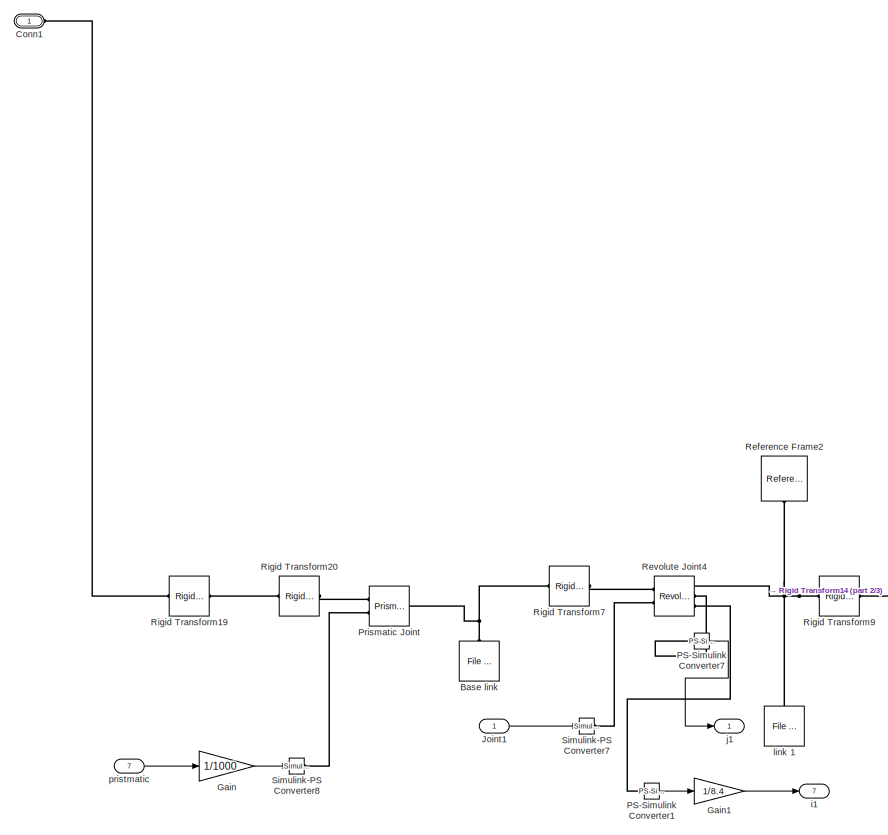
[diagram: Subsystem/base/Manipulator - part 1/3, left side, full height]
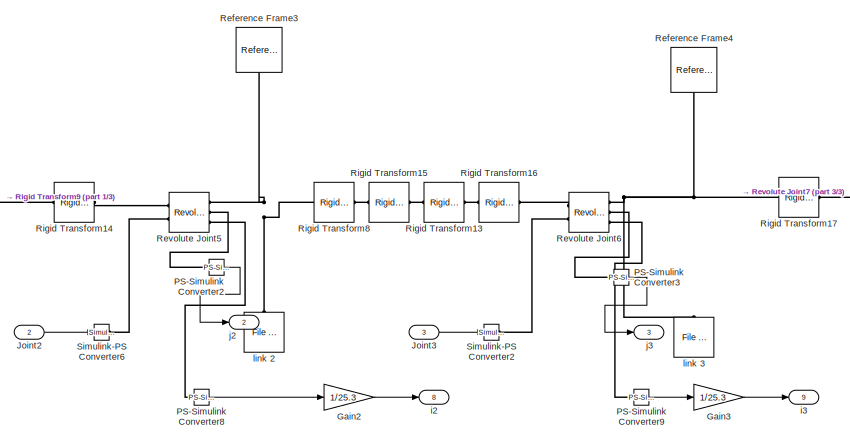
[diagram: Subsystem/base/Manipulator - part 2/3, bottom center region]
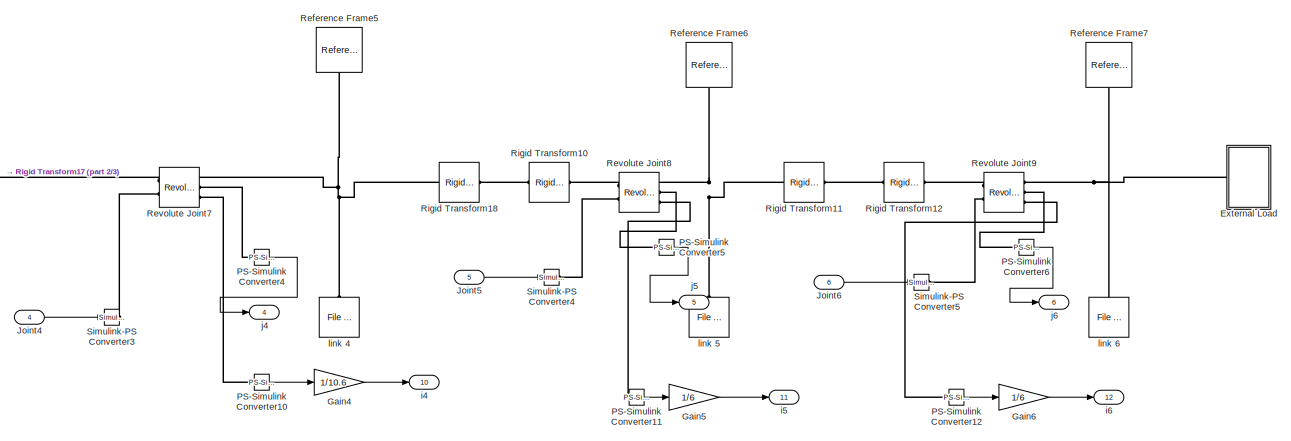
[diagram: Subsystem/base/Manipulator - part 3/3, bottom right region]
BLOCK [SubSystem] Subsystem/base/Manipulator
  Ports = [7, 12, 0, 0, 0, 1]
  RequestExecContextInheritance = off
BLOCK [Reference] Subsystem/base/Manipulator/Base link  REF=sm_lib/Body Elements/File Solid
  NameLocation = right
  Ports = [0, 0, 0, 0, 0, 0, 1]
  SourceBlock = sm_lib/Body Elements/File Solid
  SourceProductBaseCode = MS
  SourceType = File Solid
BLOCK [PMIOPort] Subsystem/base/Manipulator/Conn1
  Side = Left
BLOCK [SubSystem] Subsystem/base/Manipulator/External Load
  Ports = [0, 0, 0, 0, 0, 1]
  RequestExecContextInheritance = off
BLOCK [Reference] Subsystem/base/Manipulator/External Load/Brick Solid  REF=sm_lib/Body Elements/Brick Solid
  NameLocation = top
  Ports = [0, 0, 0, 0, 0, 0, 1]
  SourceBlock = sm_lib/Body Elements/Brick Solid
  SourceProductBaseCode = MS
  SourceType = Brick Solid
BLOCK [PMIOPort] Subsystem/base/Manipulator/External Load/Conn1
  Side = Left
BLOCK [Reference] Subsystem/base/Manipulator/External Load/Rigid Transform14  REF=sm_lib/Frames and
Transforms/Rigid
Transform
  Ports = [0, 0, 0, 0, 0, 1, 1]
  SourceBlock = sm_lib/Frames and\nTransforms/Rigid\nTransform
  SourceProductBaseCode = MS
  SourceType = Rigid\nTransform
BLOCK [Gain] Subsystem/base/Manipulator/Gain
  Gain = 1/1000
BLOCK [Gain] Subsystem/base/Manipulator/Gain1
  Gain = 1/8.4
BLOCK [Gain] Subsystem/base/Manipulator/Gain2
  Gain = 1/25.3
BLOCK [Gain] Subsystem/base/Manipulator/Gain3
  Gain = 1/25.3
BLOCK [Gain] Subsystem/base/Manipulator/Gain4
  Gain = 1/10.6
BLOCK [Gain] Subsystem/base/Manipulator/Gain5
  Gain = 1/6
BLOCK [Gain] Subsystem/base/Manipulator/Gain6
  Gain = 1/6
BLOCK [Inport] Subsystem/base/Manipulator/Joint1
BLOCK [Inport] Subsystem/base/Manipulator/Joint2
  Port = 2
BLOCK [Inport] Subsystem/base/Manipulator/Joint3
  Port = 3
BLOCK [Inport] Subsystem/base/Manipulator/Joint4
  Port = 4
BLOCK [Inport] Subsystem/base/Manipulator/Joint5
  Port = 5
BLOCK [Inport] Subsystem/base/Manipulator/Joint6
  Port = 6
BLOCK [Reference] Subsystem/base/Manipulator/PS-Simulink Converter1  REF=nesl_utility/PS-Simulink
Converter
  Ports = [0, 1, 0, 0, 0, 1]
  SourceBlock = nesl_utility/PS-Simulink\nConverter
  SourceProductBaseCode = PW,SS
  SourceType = PS-Simulink\nConverter
BLOCK [Reference] Subsystem/base/Manipulator/PS-Simulink Converter10  REF=nesl_utility/PS-Simulink
Converter
  Ports = [0, 1, 0, 0, 0, 1]
  SourceBlock = nesl_utility/PS-Simulink\nConverter
  SourceProductBaseCode = PW,SS
  SourceType = PS-Simulink\nConverter
BLOCK [Reference] Subsystem/base/Manipulator/PS-Simulink Converter11  REF=nesl_utility/PS-Simulink
Converter
  Ports = [0, 1, 0, 0, 0, 1]
  SourceBlock = nesl_utility/PS-Simulink\nConverter
  SourceProductBaseCode = PW,SS
  SourceType = PS-Simulink\nConverter
BLOCK [Reference] Subsystem/base/Manipulator/PS-Simulink Converter12  REF=nesl_utility/PS-Simulink
Converter
  Ports = [0, 1, 0, 0, 0, 1]
  SourceBlock = nesl_utility/PS-Simulink\nConverter
  SourceProductBaseCode = PW,SS
  SourceType = PS-Simulink\nConverter
BLOCK [Reference] Subsystem/base/Manipulator/PS-Simulink Converter2  REF=nesl_utility/PS-Simulink
Converter
  Ports = [0, 1, 0, 0, 0, 1]
  SourceBlock = nesl_utility/PS-Simulink\nConverter
  SourceProductBaseCode = PW,SS
  SourceType = PS-Simulink\nConverter
BLOCK [Reference] Subsystem/base/Manipulator/PS-Simulink Converter3  REF=nesl_utility/PS-Simulink
Converter
  Ports = [0, 1, 0, 0, 0, 1]
  SourceBlock = nesl_utility/PS-Simulink\nConverter
  SourceProductBaseCode = PW,SS
  SourceType = PS-Simulink\nConverter
BLOCK [Reference] Subsystem/base/Manipulator/PS-Simulink Converter4  REF=nesl_utility/PS-Simulink
Converter
  Ports = [0, 1, 0, 0, 0, 1]
  SourceBlock = nesl_utility/PS-Simulink\nConverter
  SourceProductBaseCode = PW,SS
  SourceType = PS-Simulink\nConverter
BLOCK [Reference] Subsystem/base/Manipulator/PS-Simulink Converter5  REF=nesl_utility/PS-Simulink
Converter
  Ports = [0, 1, 0, 0, 0, 1]
  SourceBlock = nesl_utility/PS-Simulink\nConverter
  SourceProductBaseCode = PW,SS
  SourceType = PS-Simulink\nConverter
BLOCK [Reference] Subsystem/base/Manipulator/PS-Simulink Converter6  REF=nesl_utility/PS-Simulink
Converter
  Ports = [0, 1, 0, 0, 0, 1]
  SourceBlock = nesl_utility/PS-Simulink\nConverter
  SourceProductBaseCode = PW,SS
  SourceType = PS-Simulink\nConverter
BLOCK [Reference] Subsystem/base/Manipulator/PS-Simulink Converter7  REF=nesl_utility/PS-Simulink
Converter
  Ports = [0, 1, 0, 0, 0, 1]
  SourceBlock = nesl_utility/PS-Simulink\nConverter
  SourceProductBaseCode = PW,SS
  SourceType = PS-Simulink\nConverter
BLOCK [Reference] Subsystem/base/Manipulator/PS-Simulink Converter8  REF=nesl_utility/PS-Simulink
Converter
  Ports = [0, 1, 0, 0, 0, 1]
  SourceBlock = nesl_utility/PS-Simulink\nConverter
  SourceProductBaseCode = PW,SS
  SourceType = PS-Simulink\nConverter
BLOCK [Reference] Subsystem/base/Manipulator/PS-Simulink Converter9  REF=nesl_utility/PS-Simulink
Converter
  Ports = [0, 1, 0, 0, 0, 1]
  SourceBlock = nesl_utility/PS-Simulink\nConverter
  SourceProductBaseCode = PW,SS
  SourceType = PS-Simulink\nConverter
BLOCK [Reference] Subsystem/base/Manipulator/Prismatic Joint  REF=sm_lib/Joints/Prismatic
Joint
  Ports = [0, 0, 0, 0, 0, 2, 1]
  SourceBlock = sm_lib/Joints/Prismatic\nJoint
  SourceProductBaseCode = MS
  SourceType = Prismatic\nJoint
BLOCK [Reference] Subsystem/base/Manipulator/Reference Frame2  REF=sm_lib/Frames and
Transforms/Reference
Frame
  NameLocation = left
  Ports = [0, 0, 0, 0, 0, 0, 1]
  SourceBlock = sm_lib/Frames and\nTransforms/Reference\nFrame
  SourceProductBaseCode = MS
  SourceType = Reference\nFrame
BLOCK [Reference] Subsystem/base/Manipulator/Reference Frame3  REF=sm_lib/Frames and
Transforms/Reference
Frame
  NameLocation = left
  Ports = [0, 0, 0, 0, 0, 0, 1]
  SourceBlock = sm_lib/Frames and\nTransforms/Reference\nFrame
  SourceProductBaseCode = MS
  SourceType = Reference\nFrame
BLOCK [Reference] Subsystem/base/Manipulator/Reference Frame4  REF=sm_lib/Frames and
Transforms/Reference
Frame
  NameLocation = left
  Ports = [0, 0, 0, 0, 0, 0, 1]
  SourceBlock = sm_lib/Frames and\nTransforms/Reference\nFrame
  SourceProductBaseCode = MS
  SourceType = Reference\nFrame
BLOCK [Reference] Subsystem/base/Manipulator/Reference Frame5  REF=sm_lib/Frames and
Transforms/Reference
Frame
  NameLocation = left
  Ports = [0, 0, 0, 0, 0, 0, 1]
  SourceBlock = sm_lib/Frames and\nTransforms/Reference\nFrame
  SourceProductBaseCode = MS
  SourceType = Reference\nFrame
BLOCK [Reference] Subsystem/base/Manipulator/Reference Frame6  REF=sm_lib/Frames and
Transforms/Reference
Frame
  NameLocation = left
  Ports = [0, 0, 0, 0, 0, 0, 1]
  SourceBlock = sm_lib/Frames and\nTransforms/Reference\nFrame
  SourceProductBaseCode = MS
  SourceType = Reference\nFrame
BLOCK [Reference] Subsystem/base/Manipulator/Reference Frame7  REF=sm_lib/Frames and
Transforms/Reference
Frame
  NameLocation = left
  Ports = [0, 0, 0, 0, 0, 0, 1]
  SourceBlock = sm_lib/Frames and\nTransforms/Reference\nFrame
  SourceProductBaseCode = MS
  SourceType = Reference\nFrame
BLOCK [Reference] Subsystem/base/Manipulator/Revolute Joint4  REF=sm_lib/Joints/Revolute Joint
  Ports = [0, 0, 0, 0, 0, 2, 3]
  SourceBlock = sm_lib/Joints/Revolute Joint
  SourceProductBaseCode = MS
  SourceType = Revolute Joint
BLOCK [Reference] Subsystem/base/Manipulator/Revolute Joint5  REF=sm_lib/Joints/Revolute Joint
  Ports = [0, 0, 0, 0, 0, 2, 3]
  SourceBlock = sm_lib/Joints/Revolute Joint
  SourceProductBaseCode = MS
  SourceType = Revolute Joint
BLOCK [Reference] Subsystem/base/Manipulator/Revolute Joint6  REF=sm_lib/Joints/Revolute Joint
  Ports = [0, 0, 0, 0, 0, 2, 3]
  SourceBlock = sm_lib/Joints/Revolute Joint
  SourceProductBaseCode = MS
  SourceType = Revolute Joint
BLOCK [Reference] Subsystem/base/Manipulator/Revolute Joint7  REF=sm_lib/Joints/Revolute Joint
  Ports = [0, 0, 0, 0, 0, 2, 3]
  SourceBlock = sm_lib/Joints/Revolute Joint
  SourceProductBaseCode = MS
  SourceType = Revolute Joint
BLOCK [Reference] Subsystem/base/Manipulator/Revolute Joint8  REF=sm_lib/Joints/Revolute Joint
  Ports = [0, 0, 0, 0, 0, 2, 3]
  SourceBlock = sm_lib/Joints/Revolute Joint
  SourceProductBaseCode = MS
  SourceType = Revolute Joint
BLOCK [Reference] Subsystem/base/Manipulator/Revolute Joint9  REF=sm_lib/Joints/Revolute Joint
  Ports = [0, 0, 0, 0, 0, 2, 3]
  SourceBlock = sm_lib/Joints/Revolute Joint
  SourceProductBaseCode = MS
  SourceType = Revolute Joint
BLOCK [Reference] Subsystem/base/Manipulator/Rigid Transform10  REF=sm_lib/Frames and
Transforms/Rigid
Transform
  Ports = [0, 0, 0, 0, 0, 1, 1]
  SourceBlock = sm_lib/Frames and\nTransforms/Rigid\nTransform
  SourceProductBaseCode = MS
  SourceType = Rigid\nTransform
BLOCK [Reference] Subsystem/base/Manipulator/Rigid Transform11  REF=sm_lib/Frames and
Transforms/Rigid
Transform
  Ports = [0, 0, 0, 0, 0, 1, 1]
  SourceBlock = sm_lib/Frames and\nTransforms/Rigid\nTransform
  SourceProductBaseCode = MS
  SourceType = Rigid\nTransform
BLOCK [Reference] Subsystem/base/Manipulator/Rigid Transform12  REF=sm_lib/Frames and
Transforms/Rigid
Transform
  Ports = [0, 0, 0, 0, 0, 1, 1]
  SourceBlock = sm_lib/Frames and\nTransforms/Rigid\nTransform
  SourceProductBaseCode = MS
  SourceType = Rigid\nTransform
BLOCK [Reference] Subsystem/base/Manipulator/Rigid Transform13  REF=sm_lib/Frames and
Transforms/Rigid
Transform
  Ports = [0, 0, 0, 0, 0, 1, 1]
  SourceBlock = sm_lib/Frames and\nTransforms/Rigid\nTransform
  SourceProductBaseCode = MS
  SourceType = Rigid\nTransform
BLOCK [Reference] Subsystem/base/Manipulator/Rigid Transform14  REF=sm_lib/Frames and
Transforms/Rigid
Transform
  Ports = [0, 0, 0, 0, 0, 1, 1]
  SourceBlock = sm_lib/Frames and\nTransforms/Rigid\nTransform
  SourceProductBaseCode = MS
  SourceType = Rigid\nTransform
BLOCK [Reference] Subsystem/base/Manipulator/Rigid Transform15  REF=sm_lib/Frames and
Transforms/Rigid
Transform
  Ports = [0, 0, 0, 0, 0, 1, 1]
  SourceBlock = sm_lib/Frames and\nTransforms/Rigid\nTransform
  SourceProductBaseCode = MS
  SourceType = Rigid\nTransform
BLOCK [Reference] Subsystem/base/Manipulator/Rigid Transform16  REF=sm_lib/Frames and
Transforms/Rigid
Transform
  Ports = [0, 0, 0, 0, 0, 1, 1]
  SourceBlock = sm_lib/Frames and\nTransforms/Rigid\nTransform
  SourceProductBaseCode = MS
  SourceType = Rigid\nTransform
BLOCK [Reference] Subsystem/base/Manipulator/Rigid Transform17  REF=sm_lib/Frames and
Transforms/Rigid
Transform
  Ports = [0, 0, 0, 0, 0, 1, 1]
  SourceBlock = sm_lib/Frames and\nTransforms/Rigid\nTransform
  SourceProductBaseCode = MS
  SourceType = Rigid\nTransform
BLOCK [Reference] Subsystem/base/Manipulator/Rigid Transform18  REF=sm_lib/Frames and
Transforms/Rigid
Transform
  Ports = [0, 0, 0, 0, 0, 1, 1]
  SourceBlock = sm_lib/Frames and\nTransforms/Rigid\nTransform
  SourceProductBaseCode = MS
  SourceType = Rigid\nTransform
BLOCK [Reference] Subsystem/base/Manipulator/Rigid Transform19  REF=sm_lib/Frames and
Transforms/Rigid
Transform
  Ports = [0, 0, 0, 0, 0, 1, 1]
  SourceBlock = sm_lib/Frames and\nTransforms/Rigid\nTransform
  SourceProductBaseCode = MS
  SourceType = Rigid\nTransform
BLOCK [Reference] Subsystem/base/Manipulator/Rigid Transform20  REF=sm_lib/Frames and
Transforms/Rigid
Transform
  Ports = [0, 0, 0, 0, 0, 1, 1]
  SourceBlock = sm_lib/Frames and\nTransforms/Rigid\nTransform
  SourceProductBaseCode = MS
  SourceType = Rigid\nTransform
BLOCK [Reference] Subsystem/base/Manipulator/Rigid Transform7  REF=sm_lib/Frames and
Transforms/Rigid
Transform
  Ports = [0, 0, 0, 0, 0, 1, 1]
  SourceBlock = sm_lib/Frames and\nTransforms/Rigid\nTransform
  SourceProductBaseCode = MS
  SourceType = Rigid\nTransform
BLOCK [Reference] Subsystem/base/Manipulator/Rigid Transform8  REF=sm_lib/Frames and
Transforms/Rigid
Transform
  Ports = [0, 0, 0, 0, 0, 1, 1]
  SourceBlock = sm_lib/Frames and\nTransforms/Rigid\nTransform
  SourceProductBaseCode = MS
  SourceType = Rigid\nTransform
BLOCK [Reference] Subsystem/base/Manipulator/Rigid Transform9  REF=sm_lib/Frames and
Transforms/Rigid
Transform
  Ports = [0, 0, 0, 0, 0, 1, 1]
  SourceBlock = sm_lib/Frames and\nTransforms/Rigid\nTransform
  SourceProductBaseCode = MS
  SourceType = Rigid\nTransform
BLOCK [Reference] Subsystem/base/Manipulator/Simulink-PS Converter2  REF=nesl_utility/Simulink-PS
Converter
  Ports = [1, 0, 0, 0, 0, 0, 1]
  SourceBlock = nesl_utility/Simulink-PS\nConverter
  SourceProductBaseCode = PW,SS
  SourceType = Simulink-PS\nConverter
BLOCK [Reference] Subsystem/base/Manipulator/Simulink-PS Converter3  REF=nesl_utility/Simulink-PS
Converter
  Ports = [1, 0, 0, 0, 0, 0, 1]
  SourceBlock = nesl_utility/Simulink-PS\nConverter
  SourceProductBaseCode = PW,SS
  SourceType = Simulink-PS\nConverter
BLOCK [Reference] Subsystem/base/Manipulator/Simulink-PS Converter4  REF=nesl_utility/Simulink-PS
Converter
  Ports = [1, 0, 0, 0, 0, 0, 1]
  SourceBlock = nesl_utility/Simulink-PS\nConverter
  SourceProductBaseCode = PW,SS
  SourceType = Simulink-PS\nConverter
BLOCK [Reference] Subsystem/base/Manipulator/Simulink-PS Converter5  REF=nesl_utility/Simulink-PS
Converter
  Ports = [1, 0, 0, 0, 0, 0, 1]
  SourceBlock = nesl_utility/Simulink-PS\nConverter
  SourceProductBaseCode = PW,SS
  SourceType = Simulink-PS\nConverter
BLOCK [Reference] Subsystem/base/Manipulator/Simulink-PS Converter6  REF=nesl_utility/Simulink-PS
Converter
  Ports = [1, 0, 0, 0, 0, 0, 1]
  SourceBlock = nesl_utility/Simulink-PS\nConverter
  SourceProductBaseCode = PW,SS
  SourceType = Simulink-PS\nConverter
BLOCK [Reference] Subsystem/base/Manipulator/Simulink-PS Converter7  REF=nesl_utility/Simulink-PS
Converter
  Ports = [1, 0, 0, 0, 0, 0, 1]
  SourceBlock = nesl_utility/Simulink-PS\nConverter
  SourceProductBaseCode = PW,SS
  SourceType = Simulink-PS\nConverter
BLOCK [Reference] Subsystem/base/Manipulator/Simulink-PS Converter8  REF=nesl_utility/Simulink-PS
Converter
  Ports = [1, 0, 0, 0, 0, 0, 1]
  SourceBlock = nesl_utility/Simulink-PS\nConverter
  SourceProductBaseCode = PW,SS
  SourceType = Simulink-PS\nConverter
BLOCK [Outport] Subsystem/base/Manipulator/i1
  Port = 7
BLOCK [Outport] Subsystem/base/Manipulator/i2
  Port = 8
BLOCK [Outport] Subsystem/base/Manipulator/i3
  Port = 9
BLOCK [Outport] Subsystem/base/Manipulator/i4
  Port = 10
BLOCK [Outport] Subsystem/base/Manipulator/i5
  Port = 11
BLOCK [Outport] Subsystem/base/Manipulator/i6
  Port = 12
BLOCK [Outport] Subsystem/base/Manipulator/j1
BLOCK [Outport] Subsystem/base/Manipulator/j2
  Port = 2
BLOCK [Outport] Subsystem/base/Manipulator/j3
  Port = 3
BLOCK [Outport] Subsystem/base/Manipulator/j4
  Port = 4
BLOCK [Outport] Subsystem/base/Manipulator/j5
  Port = 5
BLOCK [Outport] Subsystem/base/Manipulator/j6
  Port = 6
BLOCK [Reference] Subsystem/base/Manipulator/link 1  REF=sm_lib/Body Elements/File Solid
  NameLocation = right
  Ports = [0, 0, 0, 0, 0, 0, 1]
  SourceBlock = sm_lib/Body Elements/File Solid
  SourceProductBaseCode = MS
  SourceType = File Solid
BLOCK [Reference] Subsystem/base/Manipulator/link 2  REF=sm_lib/Body Elements/File Solid
  NameLocation = right
  Ports = [0, 0, 0, 0, 0, 0, 1]
  SourceBlock = sm_lib/Body Elements/File Solid
  SourceProductBaseCode = MS
  SourceType = File Solid
BLOCK [Reference] Subsystem/base/Manipulator/link 3  REF=sm_lib/Body Elements/File Solid
  NameLocation = right
  Ports = [0, 0, 0, 0, 0, 0, 1]
  SourceBlock = sm_lib/Body Elements/File Solid
  SourceProductBaseCode = MS
  SourceType = File Solid
BLOCK [Reference] Subsystem/base/Manipulator/link 4  REF=sm_lib/Body Elements/File Solid
  NameLocation = right
  Ports = [0, 0, 0, 0, 0, 0, 1]
  SourceBlock = sm_lib/Body Elements/File Solid
  SourceProductBaseCode = MS
  SourceType = File Solid
BLOCK [Reference] Subsystem/base/Manipulator/link 5  REF=sm_lib/Body Elements/File Solid
  NameLocation = right
  Ports = [0, 0, 0, 0, 0, 0, 1]
  SourceBlock = sm_lib/Body Elements/File Solid
  SourceProductBaseCode = MS
  SourceType = File Solid
BLOCK [Reference] Subsystem/base/Manipulator/link 6  REF=sm_lib/Body Elements/File Solid
  NameLocation = right
  Ports = [0, 0, 0, 0, 0, 0, 1]
  SourceBlock = sm_lib/Body Elements/File Solid
  SourceProductBaseCode = MS
  SourceType = File Solid
BLOCK [Inport] Subsystem/base/Manipulator/pristmatic
  Port = 7
BLOCK [Reference] Subsystem/base/MechanismConfiguration  REF=sm_lib/Utilities/Mechanism
Configuration
  Ports = [0, 0, 0, 0, 0, 0, 1]
  SourceBlock = sm_lib/Utilities/Mechanism\nConfiguration
  SourceProductBaseCode = MS
  SourceType = Mechanism\nConfiguration
BLOCK [SubSystem] Subsystem/base/Mobile Base
  Ports = [2, 2, 0, 0, 0, 1, 1]
  RequestExecContextInheritance = off
BLOCK [Reference] Subsystem/base/Mobile Base/6-DOF Joint  REF=sm_lib/Joints/6-DOF Joint
  Ports = [0, 0, 0, 0, 0, 1, 1]
  SourceBlock = sm_lib/Joints/6-DOF Joint
  SourceProductBaseCode = MS
  SourceType = 6-DOF Joint
BLOCK [PMIOPort] Subsystem/base/Mobile Base/Conn1
  Side = Left
BLOCK [PMIOPort] Subsystem/base/Mobile Base/Conn2
  Port = 2
  Side = Right
BLOCK [Reference] Subsystem/base/Mobile Base/File Solid  REF=sm_lib/Body Elements/File Solid
  NameLocation = right
  Ports = [0, 0, 0, 0, 0, 0, 1]
  SourceBlock = sm_lib/Body Elements/File Solid
  SourceProductBaseCode = MS
  SourceType = File Solid
BLOCK [Reference] Subsystem/base/Mobile Base/File Solid1  REF=sm_lib/Body Elements/File Solid
  NameLocation = top
  Ports = [0, 0, 0, 0, 0, 1, 1]
  SourceBlock = sm_lib/Body Elements/File Solid
  SourceProductBaseCode = MS
  SourceType = File Solid
BLOCK [Reference] Subsystem/base/Mobile Base/File Solid2  REF=sm_lib/Body Elements/File Solid
  NameLocation = top
  Ports = [0, 0, 0, 0, 0, 1, 1]
  SourceBlock = sm_lib/Body Elements/File Solid
  SourceProductBaseCode = MS
  SourceType = File Solid
BLOCK [Reference] Subsystem/base/Mobile Base/File Solid3  REF=sm_lib/Body Elements/File Solid
  NameLocation = top
  Ports = [0, 0, 0, 0, 0, 1, 1]
  SourceBlock = sm_lib/Body Elements/File Solid
  SourceProductBaseCode = MS
  SourceType = File Solid
BLOCK [Reference] Subsystem/base/Mobile Base/File Solid4  REF=sm_lib/Body Elements/File Solid
  NameLocation = top
  Ports = [0, 0, 0, 0, 0, 1, 1]
  SourceBlock = sm_lib/Body Elements/File Solid
  SourceProductBaseCode = MS
  SourceType = File Solid
BLOCK [Reference] Subsystem/base/Mobile Base/Graphic  REF=sm_lib/Body Elements/Graphic
  NameLocation = left
  Ports = [0, 0, 0, 0, 0, 0, 1]
  SourceBlock = sm_lib/Body Elements/Graphic
  SourceProductBaseCode = MS
  SourceType = Graphic
BLOCK [Reference] Subsystem/base/Mobile Base/Graphic1  REF=sm_lib/Body Elements/Graphic
  NameLocation = right
  Ports = [0, 0, 0, 0, 0, 0, 1]
  SourceBlock = sm_lib/Body Elements/Graphic
  SourceProductBaseCode = MS
  SourceType = Graphic
BLOCK [Reference] Subsystem/base/Mobile Base/Graphic2  REF=sm_lib/Body Elements/Graphic
  NameLocation = left
  Ports = [0, 0, 0, 0, 0, 0, 1]
  SourceBlock = sm_lib/Body Elements/Graphic
  SourceProductBaseCode = MS
  SourceType = Graphic
BLOCK [Reference] Subsystem/base/Mobile Base/Graphic3  REF=sm_lib/Body Elements/Graphic
  NameLocation = left
  Ports = [0, 0, 0, 0, 0, 0, 1]
  SourceBlock = sm_lib/Body Elements/Graphic
  SourceProductBaseCode = MS
  SourceType = Graphic
BLOCK [Reference] Subsystem/base/Mobile Base/Infinite Plane1  REF=sm_lib/Curves and Surfaces/Infinite Plane
  Ports = [0, 0, 0, 0, 0, 1, 1]
  SourceBlock = sm_lib/Curves and Surfaces/Infinite Plane
  SourceProductBaseCode = MS
  SourceType = Infinite Plane
BLOCK [Reference] Subsystem/base/Mobile Base/PS-Simulink Converter  REF=nesl_utility/PS-Simulink
Converter
  Ports = [0, 1, 0, 0, 0, 1]
  SourceBlock = nesl_utility/PS-Simulink\nConverter
  SourceProductBaseCode = PW,SS
  SourceType = PS-Simulink\nConverter
BLOCK [Reference] Subsystem/base/Mobile Base/PS-Simulink Converter1  REF=nesl_utility/PS-Simulink
Converter
  Ports = [0, 1, 0, 0, 0, 1]
  SourceBlock = nesl_utility/PS-Simulink\nConverter
  SourceProductBaseCode = PW,SS
  SourceType = PS-Simulink\nConverter
BLOCK [Reference] Subsystem/base/Mobile Base/Revolute Joint  REF=sm_lib/Joints/Revolute Joint
  Ports = [0, 0, 0, 0, 0, 2, 2]
  SourceBlock = sm_lib/Joints/Revolute Joint
  SourceProductBaseCode = MS
  SourceType = Revolute Joint
BLOCK [Reference] Subsystem/base/Mobile Base/Revolute Joint1  REF=sm_lib/Joints/Revolute Joint
  Ports = [0, 0, 0, 0, 0, 2, 2]
  SourceBlock = sm_lib/Joints/Revolute Joint
  SourceProductBaseCode = MS
  SourceType = Revolute Joint
BLOCK [Reference] Subsystem/base/Mobile Base/Revolute Joint2  REF=sm_lib/Joints/Revolute Joint
  Ports = [0, 0, 0, 0, 0, 1, 1]
  SourceBlock = sm_lib/Joints/Revolute Joint
  SourceProductBaseCode = MS
  SourceType = Revolute Joint
BLOCK [Reference] Subsystem/base/Mobile Base/Revolute Joint3  REF=sm_lib/Joints/Revolute Joint
  Ports = [0, 0, 0, 0, 0, 1, 1]
  SourceBlock = sm_lib/Joints/Revolute Joint
  SourceProductBaseCode = MS
  SourceType = Revolute Joint
BLOCK [Reference] Subsystem/base/Mobile Base/Rigid Transform  REF=sm_lib/Frames and
Transforms/Rigid
Transform
  Ports = [0, 0, 0, 0, 0, 1, 1]
  SourceBlock = sm_lib/Frames and\nTransforms/Rigid\nTransform
  SourceProductBaseCode = MS
  SourceType = Rigid\nTransform
BLOCK [Reference] Subsystem/base/Mobile Base/Rigid Transform1  REF=sm_lib/Frames and
Transforms/Rigid
Transform
  Ports = [0, 0, 0, 0, 0, 1, 1]
  SourceBlock = sm_lib/Frames and\nTransforms/Rigid\nTransform
  SourceProductBaseCode = MS
  SourceType = Rigid\nTransform
BLOCK [Reference] Subsystem/base/Mobile Base/Rigid Transform2  REF=sm_lib/Frames and
Transforms/Rigid
Transform
  Ports = [0, 0, 0, 0, 0, 1, 1]
  SourceBlock = sm_lib/Frames and\nTransforms/Rigid\nTransform
  SourceProductBaseCode = MS
  SourceType = Rigid\nTransform
BLOCK [Reference] Subsystem/base/Mobile Base/Rigid Transform3  REF=sm_lib/Frames and
Transforms/Rigid
Transform
  Ports = [0, 0, 0, 0, 0, 1, 1]
  SourceBlock = sm_lib/Frames and\nTransforms/Rigid\nTransform
  SourceProductBaseCode = MS
  SourceType = Rigid\nTransform
BLOCK [Reference] Subsystem/base/Mobile Base/Rigid Transform4  REF=sm_lib/Frames and
Transforms/Rigid
Transform
  Ports = [0, 0, 0, 0, 0, 1, 1]
  SourceBlock = sm_lib/Frames and\nTransforms/Rigid\nTransform
  SourceProductBaseCode = MS
  SourceType = Rigid\nTransform
BLOCK [Reference] Subsystem/base/Mobile Base/Rigid Transform5  REF=sm_lib/Frames and
Transforms/Rigid
Transform
  Ports = [0, 0, 0, 0, 0, 1, 1]
  SourceBlock = sm_lib/Frames and\nTransforms/Rigid\nTransform
  SourceProductBaseCode = MS
  SourceType = Rigid\nTransform
BLOCK [Reference] Subsystem/base/Mobile Base/Rigid Transform6  REF=sm_lib/Frames and
Transforms/Rigid
Transform
  Ports = [0, 0, 0, 0, 0, 1, 1]
  SourceBlock = sm_lib/Frames and\nTransforms/Rigid\nTransform
  SourceProductBaseCode = MS
  SourceType = Rigid\nTransform
BLOCK [Reference] Subsystem/base/Mobile Base/Simulink-PS Converter  REF=nesl_utility/Simulink-PS
Converter
  Ports = [1, 0, 0, 0, 0, 0, 1]
  SourceBlock = nesl_utility/Simulink-PS\nConverter
  SourceProductBaseCode = PW,SS
  SourceType = Simulink-PS\nConverter
BLOCK [Reference] Subsystem/base/Mobile Base/Simulink-PS Converter1  REF=nesl_utility/Simulink-PS
Converter
  Ports = [1, 0, 0, 0, 0, 0, 1]
  SourceBlock = nesl_utility/Simulink-PS\nConverter
  SourceProductBaseCode = PW,SS
  SourceType = Simulink-PS\nConverter
BLOCK [Reference] Subsystem/base/Mobile Base/Spatial Contact Force  REF=sm_lib/Forces and
Torques/Spatial
Contact Force
  Ports = [0, 0, 0, 0, 0, 1, 1]
  SourceBlock = sm_lib/Forces and\nTorques/Spatial\nContact Force
  SourceProductBaseCode = MS
  SourceType = Spatial\nContact Force
BLOCK [Reference] Subsystem/base/Mobile Base/Spatial Contact Force1  REF=sm_lib/Forces and
Torques/Spatial
Contact Force
  Ports = [0, 0, 0, 0, 0, 1, 1]
  SourceBlock = sm_lib/Forces and\nTorques/Spatial\nContact Force
  SourceProductBaseCode = MS
  SourceType = Spatial\nContact Force
BLOCK [Reference] Subsystem/base/Mobile Base/Spatial Contact Force2  REF=sm_lib/Forces and
Torques/Spatial
Contact Force
  Ports = [0, 0, 0, 0, 0, 1, 1]
  SourceBlock = sm_lib/Forces and\nTorques/Spatial\nContact Force
  SourceProductBaseCode = MS
  SourceType = Spatial\nContact Force
BLOCK [Reference] Subsystem/base/Mobile Base/Spatial Contact Force3  REF=sm_lib/Forces and
Torques/Spatial
Contact Force
  Ports = [0, 0, 0, 0, 0, 1, 1]
  SourceBlock = sm_lib/Forces and\nTorques/Spatial\nContact Force
  SourceProductBaseCode = MS
  SourceType = Spatial\nContact Force
BLOCK [Inport] Subsystem/base/Mobile Base/input0
BLOCK [Inport] Subsystem/base/Mobile Base/input1
  Port = 2
BLOCK [Outport] Subsystem/base/Mobile Base/output
BLOCK [Outport] Subsystem/base/Mobile Base/output1
  Port = 2
BLOCK [Inport] Subsystem/base/R_wheel
  Port = 2
BLOCK [Reference] Subsystem/base/Solver Configuration  REF=nesl_utility/Solver
Configuration
  Ports = [0, 0, 0, 0, 0, 0, 1]
  SourceBlock = nesl_utility/Solver\nConfiguration
  SourceProductBaseCode = PW,SS
  SourceType = Solver\nConfiguration
BLOCK [Reference] Subsystem/base/World  REF=sm_lib/Frames and
Transforms/World Frame
  Ports = [0, 0, 0, 0, 0, 0, 1]
  SourceBlock = sm_lib/Frames and\nTransforms/World Frame
  SourceProductBaseCode = MS
  SourceType = World Frame
BLOCK [Outport] Subsystem/base/i1
  Port = 9
BLOCK [Outport] Subsystem/base/i2
  Port = 10
BLOCK [Outport] Subsystem/base/i3
  Port = 11
BLOCK [Outport] Subsystem/base/i4
  Port = 12
BLOCK [Outport] Subsystem/base/i5
  Port = 13
BLOCK [Outport] Subsystem/base/i6
  Port = 14
BLOCK [Outport] Subsystem/base/j1
  Port = 3
BLOCK [Outport] Subsystem/base/j2
  Port = 4
BLOCK [Outport] Subsystem/base/j3
  Port = 5
BLOCK [Outport] Subsystem/base/j4
  Port = 6
BLOCK [Outport] Subsystem/base/j5
  Port = 7
BLOCK [Outport] Subsystem/base/j6
  Port = 8
BLOCK [Inport] Subsystem/base/pristmatic
  Port = 9
BLOCK [Outport] Subsystem/base/q_L
BLOCK [Outport] Subsystem/base/q_R
  Port = 2
BLOCK [SubSystem] Subsystem/controller
  Ports = [4, 2]
  RequestExecContextInheritance = off
BLOCK [Reference] Subsystem/controller/PID Controller  REF=slpidlib/PID Controller
  Ports = [1, 1]
  SourceBlock = slpidlib/PID Controller
  SourceProductBaseCode = SL
  SourceType = PID 1dof
BLOCK [Reference] Subsystem/controller/PID Controller1  REF=slpidlib/PID Controller
  Ports = [1, 1]
  SourceBlock = slpidlib/PID Controller
  SourceProductBaseCode = SL
  SourceType = PID 1dof
BLOCK [Sum] Subsystem/controller/Sum
  Inputs = |+-
  Ports = [2, 1]
BLOCK [Sum] Subsystem/controller/Sum1
  Inputs = |+-
  Ports = [2, 1]
BLOCK [Outport] Subsystem/controller/uL
BLOCK [Outport] Subsystem/controller/uR
  Port = 2
BLOCK [Inport] Subsystem/controller/wL_feedback
BLOCK [Inport] Subsystem/controller/wL_setpoint
  Port = 2
BLOCK [Inport] Subsystem/controller/wR_feedback
  Port = 4
BLOCK [Inport] Subsystem/controller/wR_setpoint
  Port = 3
BLOCK [Goto] Subsystem/q1
  GotoTag = q1
  NameLocation = top
BLOCK [Goto] Subsystem/q2
  GotoTag = q2
BLOCK [Goto] Subsystem/q3
  GotoTag = q3
BLOCK [Goto] Subsystem/q4
  GotoTag = q4
BLOCK [Goto] Subsystem/q5
  GotoTag = q5
BLOCK [Goto] Subsystem/q6
  GotoTag = q6
BLOCK [Inport] Subsystem/q_ref
  Port = 5
BLOCK [Inport] Subsystem/q_ref1
  Port = 6
BLOCK [Inport] Subsystem/q_ref2
  Port = 7
BLOCK [Inport] Subsystem/q_ref3
  Port = 8
BLOCK [Inport] Subsystem/q_ref4
  Port = 9
BLOCK [Inport] Subsystem/q_ref5
  Port = 10
BLOCK [Inport] Subsystem/w
  Port = 2
BLOCK [Outport] Subsystem/w1
  Port = 3
LINE Blank Message1:1 -> Bus Assignment1:1
LINE Blank Message2:1 -> Bus Assignment2:1
LINE Blank Message:1 -> Bus Assignment:1
LINE Bus Assignment1:1 -> Publish1:1
LINE Bus Assignment2:1 -> Publish2:1
LINE Bus Assignment:1 -> Publish:1
LINE Constant1:1 -> Subsystem:4
LINE Constant2:1 -> HouseM8:3
LINE Constant3:1 -> HouseM8:4
LINE Constant:1 -> Subsystem:3
LINE Demux:1 -> Scope:1
LINE Demux:2 -> Scope:2
LINE Demux:3 -> Scope:3
LINE Demux:4 -> Scope:4
LINE Demux:5 -> Scope:5
LINE Demux:6 -> Scope:6
LINE Enabled Subsystem/Bus Selector:1 -> Enabled Subsystem/่่joint1:1
LINE Enabled Subsystem/Bus Selector:2 -> Enabled Subsystem/joint2:1
LINE Enabled Subsystem/In1:1 -> Enabled Subsystem/Bus Selector:1
LINE Enabled Subsystem1/Bus Selector:1 -> Enabled Subsystem1/v:1
LINE Enabled Subsystem1/Bus Selector:2 -> Enabled Subsystem1/w:1
LINE Enabled Subsystem1/In1:1 -> Enabled Subsystem1/Bus Selector:1
LINE Enabled Subsystem1:1 -> HouseM8:1
LINE Enabled Subsystem1:2 -> HouseM8:2
LINE Enabled Subsystem:1 -> HouseM8:5
LINE Enabled Subsystem:2 -> HouseM8:6
LINE Enabled Subsystem:3 -> HouseM8:7
LINE Enabled Subsystem:4 -> HouseM8:8
LINE Enabled Subsystem:5 -> HouseM8:9
LINE Enabled Subsystem:6 -> HouseM8:10
LINE Enabled Subsystem:7 -> HouseM8:11
LINE From Workspace1:1 -> Subsystem:6
LINE From Workspace2:1 -> Subsystem:7
LINE From Workspace3:1 -> Subsystem:8
LINE From Workspace4:1 -> Subsystem:9
LINE From Workspace5:1 -> Subsystem:10
LINE From Workspace:1 -> Subsystem:5
LINE Gain:1 -> Subsystem:1
LINE HouseM8/Constant3:1 -> HouseM8/MATLAB Function:3
LINE HouseM8/Constant4:1 -> HouseM8/MATLAB Function:4
LINE HouseM8/From1:1 -> HouseM8/J5:2
LINE HouseM8/From2:1 -> HouseM8/J3:2
LINE HouseM8/From3:1 -> HouseM8/J4:2
LINE HouseM8/From4:1 -> HouseM8/J2:2
LINE HouseM8/From5:1 -> HouseM8/J1:2
LINE HouseM8/From:1 -> HouseM8/J6:2
NET HouseM8/IK:1 -> HouseM8/Scope1:1, HouseM8/controller:2
LINE HouseM8/IK:2 -> HouseM8/controller:3
LINE HouseM8/J1/PID Controller:1 -> HouseM8/J1/q:1
LINE HouseM8/J1/Sum:1 -> HouseM8/J1/PID Controller:1
LINE HouseM8/J1/q_fb:1 -> HouseM8/J1/Sum:2
LINE HouseM8/J1/q_ref:1 -> HouseM8/J1/Sum:1
LINE HouseM8/J1:1 -> HouseM8/base:3
LINE HouseM8/J2/PID Controller:1 -> HouseM8/J2/q:1
LINE HouseM8/J2/Sum:1 -> HouseM8/J2/PID Controller:1
NET HouseM8/J2/q_fb:1 -> HouseM8/J2/Scope:2, HouseM8/J2/Sum:2
NET HouseM8/J2/q_ref:1 -> HouseM8/J2/Scope:1, HouseM8/J2/Sum:1
LINE HouseM8/J2:1 -> HouseM8/base:4
LINE HouseM8/J3/PID Controller:1 -> HouseM8/J3/q:1
LINE HouseM8/J3/Sum:1 -> HouseM8/J3/PID Controller:1
NET HouseM8/J3/q_fb:1 -> HouseM8/J3/Scope:2, HouseM8/J3/Sum:2
NET HouseM8/J3/q_ref:1 -> HouseM8/J3/Scope:1, HouseM8/J3/Sum:1
LINE HouseM8/J3:1 -> HouseM8/base:5
LINE HouseM8/J4/PID Controller:1 -> HouseM8/J4/q:1
LINE HouseM8/J4/Sum:1 -> HouseM8/J4/PID Controller:1
NET HouseM8/J4/q_fb:1 -> HouseM8/J4/Scope:2, HouseM8/J4/Sum:2
NET HouseM8/J4/q_ref:1 -> HouseM8/J4/Scope:1, HouseM8/J4/Sum:1
LINE HouseM8/J4:1 -> HouseM8/base:6
LINE HouseM8/J5/PID Controller:1 -> HouseM8/J5/q:1
LINE HouseM8/J5/Sum:1 -> HouseM8/J5/PID Controller:1
NET HouseM8/J5/q_fb:1 -> HouseM8/J5/Scope:2, HouseM8/J5/Sum:2
NET HouseM8/J5/q_ref:1 -> HouseM8/J5/Scope:1, HouseM8/J5/Sum:1
LINE HouseM8/J5:1 -> HouseM8/base:7
LINE HouseM8/J6/PID Controller:1 -> HouseM8/J6/q:1
LINE HouseM8/J6/Sum:1 -> HouseM8/J6/PID Controller:1
NET HouseM8/J6/q_fb:1 -> HouseM8/J6/Scope:2, HouseM8/J6/Sum:2
NET HouseM8/J6/q_ref:1 -> HouseM8/J6/Scope:1, HouseM8/J6/Sum:1
LINE HouseM8/J6:1 -> HouseM8/base:8
LINE HouseM8/Kalman filter L/Delay1:1 -> HouseM8/Kalman filter L/Kalman filter:3
LINE HouseM8/Kalman filter L/Delay2:1 -> HouseM8/Kalman filter L/Kalman filter:4
LINE HouseM8/Kalman filter L/Delay3:1 -> HouseM8/Kalman filter L/Kalman filter:5
LINE HouseM8/Kalman filter L/Delay4:1 -> HouseM8/Kalman filter L/Kalman filter:6
LINE HouseM8/Kalman filter L/Delay5:1 -> HouseM8/Kalman filter L/Kalman filter:7
LINE HouseM8/Kalman filter L/Delay:1 -> HouseM8/Kalman filter L/Kalman filter:2
NET HouseM8/Kalman filter L/Kalman filter:1 -> HouseM8/Kalman filter L/Delay:1, HouseM8/Kalman filter L/X1:1
NET HouseM8/Kalman filter L/Kalman filter:2 -> HouseM8/Kalman filter L/Delay1:1, HouseM8/Kalman filter L/X2:1
LINE HouseM8/Kalman filter L/Kalman filter:3 -> HouseM8/Kalman filter L/Delay2:1
LINE HouseM8/Kalman filter L/Kalman filter:4 -> HouseM8/Kalman filter L/Delay3:1
LINE HouseM8/Kalman filter L/Kalman filter:5 -> HouseM8/Kalman filter L/Delay4:1
LINE HouseM8/Kalman filter L/Kalman filter:6 -> HouseM8/Kalman filter L/Delay5:1
LINE HouseM8/Kalman filter L/Kalman filter:7 -> HouseM8/Kalman filter L/Scope:1
LINE HouseM8/Kalman filter L/theta_k:1 -> HouseM8/Kalman filter L/Kalman filter:1
NET HouseM8/Kalman filter L:2 -> HouseM8/MATLAB Function:1, HouseM8/Scope1:2, HouseM8/controller:1
LINE HouseM8/Kalman filter R/Delay1:1 -> HouseM8/Kalman filter R/Kalman filter:3
LINE HouseM8/Kalman filter R/Delay2:1 -> HouseM8/Kalman filter R/Kalman filter:4
LINE HouseM8/Kalman filter R/Delay3:1 -> HouseM8/Kalman filter R/Kalman filter:5
LINE HouseM8/Kalman filter R/Delay4:1 -> HouseM8/Kalman filter R/Kalman filter:6
LINE HouseM8/Kalman filter R/Delay5:1 -> HouseM8/Kalman filter R/Kalman filter:7
LINE HouseM8/Kalman filter R/Delay:1 -> HouseM8/Kalman filter R/Kalman filter:2
NET HouseM8/Kalman filter R/Kalman filter:1 -> HouseM8/Kalman filter R/Delay:1, HouseM8/Kalman filter R/X1:1
NET HouseM8/Kalman filter R/Kalman filter:2 -> HouseM8/Kalman filter R/Delay1:1, HouseM8/Kalman filter R/X2:1
LINE HouseM8/Kalman filter R/Kalman filter:3 -> HouseM8/Kalman filter R/Delay2:1
LINE HouseM8/Kalman filter R/Kalman filter:4 -> HouseM8/Kalman filter R/Delay3:1
LINE HouseM8/Kalman filter R/Kalman filter:5 -> HouseM8/Kalman filter R/Delay4:1
LINE HouseM8/Kalman filter R/Kalman filter:6 -> HouseM8/Kalman filter R/Delay5:1
LINE HouseM8/Kalman filter R/Kalman filter:7 -> HouseM8/Kalman filter R/Scope:1
LINE HouseM8/Kalman filter R/theta_k:1 -> HouseM8/Kalman filter R/Kalman filter:1
NET HouseM8/Kalman filter R:2 -> HouseM8/MATLAB Function:2, HouseM8/controller:4
LINE HouseM8/L:1 -> HouseM8/IK:4
NET HouseM8/MATLAB Function:1 -> HouseM8/Scope:2, HouseM8/v_robot:1
LINE HouseM8/MATLAB Function:2 -> HouseM8/w_robot:1
LINE HouseM8/R:1 -> HouseM8/IK:3
LINE HouseM8/base/Joint1:1 -> HouseM8/base/Manipulator:1
LINE HouseM8/base/Joint2:1 -> HouseM8/base/Manipulator:2
LINE HouseM8/base/Joint3:1 -> HouseM8/base/Manipulator:3
LINE HouseM8/base/Joint4:1 -> HouseM8/base/Manipulator:4
LINE HouseM8/base/Joint5:1 -> HouseM8/base/Manipulator:5
LINE HouseM8/base/Joint6:1 -> HouseM8/base/Manipulator:6
LINE HouseM8/base/L_wheel:1 -> HouseM8/base/Mobile Base:1
LINE HouseM8/base/Manipulator/Gain:1 -> HouseM8/base/Manipulator/Simulink-PS Converter8:1
LINE HouseM8/base/Manipulator/Joint1:1 -> HouseM8/base/Manipulator/Simulink-PS Converter7:1
LINE HouseM8/base/Manipulator/Joint2:1 -> HouseM8/base/Manipulator/Simulink-PS Converter6:1
LINE HouseM8/base/Manipulator/Joint3:1 -> HouseM8/base/Manipulator/Simulink-PS Converter2:1
LINE HouseM8/base/Manipulator/Joint4:1 -> HouseM8/base/Manipulator/Simulink-PS Converter3:1
LINE HouseM8/base/Manipulator/Joint5:1 -> HouseM8/base/Manipulator/Simulink-PS Converter4:1
LINE HouseM8/base/Manipulator/Joint6:1 -> HouseM8/base/Manipulator/Simulink-PS Converter5:1
LINE HouseM8/base/Manipulator/PS-Simulink Converter2:1 -> HouseM8/base/Manipulator/j2:1
LINE HouseM8/base/Manipulator/PS-Simulink Converter3:1 -> HouseM8/base/Manipulator/j3:1
LINE HouseM8/base/Manipulator/PS-Simulink Converter4:1 -> HouseM8/base/Manipulator/j4:1
LINE HouseM8/base/Manipulator/PS-Simulink Converter5:1 -> HouseM8/base/Manipulator/j5:1
LINE HouseM8/base/Manipulator/PS-Simulink Converter6:1 -> HouseM8/base/Manipulator/j6:1
LINE HouseM8/base/Manipulator/PS-Simulink Converter7:1 -> HouseM8/base/Manipulator/j1:1
LINE HouseM8/base/Manipulator/pristmatic:1 -> HouseM8/base/Manipulator/Gain:1
LINE HouseM8/base/Manipulator:1 -> HouseM8/base/j1:1
LINE HouseM8/base/Manipulator:2 -> HouseM8/base/j2:1
LINE HouseM8/base/Manipulator:3 -> HouseM8/base/j3:1
LINE HouseM8/base/Manipulator:4 -> HouseM8/base/j4:1
LINE HouseM8/base/Manipulator:5 -> HouseM8/base/j5:1
LINE HouseM8/base/Manipulator:6 -> HouseM8/base/j6:1
LINE HouseM8/base/Mobile Base/PS-Simulink Converter1:1 -> HouseM8/base/Mobile Base/output1:1
LINE HouseM8/base/Mobile Base/PS-Simulink Converter:1 -> HouseM8/base/Mobile Base/output:1
LINE HouseM8/base/Mobile Base/input0:1 -> HouseM8/base/Mobile Base/Simulink-PS Converter:1
LINE HouseM8/base/Mobile Base/input1:1 -> HouseM8/base/Mobile Base/Simulink-PS Converter1:1
LINE HouseM8/base/Mobile Base:1 -> HouseM8/base/q_L:1
LINE HouseM8/base/Mobile Base:2 -> HouseM8/base/q_R:1
LINE HouseM8/base/Mobile Base:3 -> HouseM8/base/gyro_z:1
LINE HouseM8/base/R_wheel:1 -> HouseM8/base/Mobile Base:2
LINE HouseM8/base/pristmatic:1 -> HouseM8/base/Manipulator:7
LINE HouseM8/base:1 -> HouseM8/Kalman filter L:1
LINE HouseM8/base:2 -> HouseM8/Kalman filter R:1
NET HouseM8/base:3 -> HouseM8/j1_fb:1, HouseM8/q1:1
NET HouseM8/base:4 -> HouseM8/j2_fb:1, HouseM8/q2:1
NET HouseM8/base:5 -> HouseM8/j3_fb:1, HouseM8/q3:1
NET HouseM8/base:6 -> HouseM8/j4_fb:1, HouseM8/q4:1
NET HouseM8/base:7 -> HouseM8/j5_fb:1, HouseM8/q5:1
NET HouseM8/base:8 -> HouseM8/j6_fb:1, HouseM8/q6:1
LINE HouseM8/base:9 -> HouseM8/gyro_z:1
LINE HouseM8/controller/PID Controller1:1 -> HouseM8/controller/uR:1
LINE HouseM8/controller/PID Controller:1 -> HouseM8/controller/uL:1
LINE HouseM8/controller/Sum1:1 -> HouseM8/controller/PID Controller1:1
LINE HouseM8/controller/Sum:1 -> HouseM8/controller/PID Controller:1
LINE HouseM8/controller/wL_feedback:1 -> HouseM8/controller/Sum:2
LINE HouseM8/controller/wL_setpoint:1 -> HouseM8/controller/Sum:1
LINE HouseM8/controller/wR_feedback:1 -> HouseM8/controller/Sum1:2
LINE HouseM8/controller/wR_setpoint:1 -> HouseM8/controller/Sum1:1
LINE HouseM8/controller:1 -> HouseM8/base:1
LINE HouseM8/controller:2 -> HouseM8/base:2
NET HouseM8/prismatic:1 -> HouseM8/base:9, HouseM8/jprismatic_fb:1
LINE HouseM8/q_ref1:1 -> HouseM8/J2:1
LINE HouseM8/q_ref2:1 -> HouseM8/J3:1
LINE HouseM8/q_ref3:1 -> HouseM8/J4:1
LINE HouseM8/q_ref4:1 -> HouseM8/J5:1
LINE HouseM8/q_ref5:1 -> HouseM8/J6:1
LINE HouseM8/q_ref:1 -> HouseM8/J1:1
NET HouseM8/v:1 -> HouseM8/IK:1, HouseM8/Scope:1
LINE HouseM8/w:1 -> HouseM8/IK:2
LINE HouseM8:1 -> Mux:1
LINE HouseM8:10 -> Bus Assignment2:2
LINE HouseM8:2 -> Mux:2
LINE HouseM8:3 -> Mux:3
LINE HouseM8:4 -> Mux:4
LINE HouseM8:5 -> Mux:5
LINE HouseM8:6 -> Mux:6
LINE HouseM8:7 -> Mux:7
LINE HouseM8:8 -> Bus Assignment1:2
LINE HouseM8:9 -> Bus Assignment1:3
LINE Integrator:1 -> Gain:1
LINE Mux:1 -> Bus Assignment:2
LINE Signal Builder1:1 -> Integrator:1
LINE Signal Builder:1 -> Subsystem:2
LINE Subscribe1:1 -> Enabled Subsystem1:enable
LINE Subscribe1:2 -> Enabled Subsystem1:1
LINE Subscribe:1 -> Enabled Subsystem:enable
LINE Subscribe:2 -> Enabled Subsystem:1
LINE Subsystem/Constant2:1 -> Subsystem/base:9
LINE Subsystem/Constant3:1 -> Subsystem/MATLAB Function:3
LINE Subsystem/Constant4:1 -> Subsystem/MATLAB Function:4
LINE Subsystem/From1:1 -> Subsystem/J5:2
LINE Subsystem/From2:1 -> Subsystem/J3:2
LINE Subsystem/From3:1 -> Subsystem/J4:2
LINE Subsystem/From4:1 -> Subsystem/J2:2
LINE Subsystem/From5:1 -> Subsystem/J1:2
LINE Subsystem/From:1 -> Subsystem/J6:2
NET Subsystem/IK:1 -> Subsystem/Scope1:1, Subsystem/controller:2
LINE Subsystem/IK:2 -> Subsystem/controller:3
NET Subsystem/In1:1 -> Subsystem/IK:1, Subsystem/Scope:1
LINE Subsystem/J1/PID Controller:1 -> Subsystem/J1/q:1
LINE Subsystem/J1/Sum:1 -> Subsystem/J1/PID Controller:1
NET Subsystem/J1/q_fb:1 -> Subsystem/J1/Scope:2, Subsystem/J1/Sum:2
NET Subsystem/J1/q_ref:1 -> Subsystem/J1/Scope:1, Subsystem/J1/Sum:1
LINE Subsystem/J1:1 -> Subsystem/base:3
LINE Subsystem/J2/PID Controller:1 -> Subsystem/J2/q:1
LINE Subsystem/J2/Sum:1 -> Subsystem/J2/PID Controller:1
NET Subsystem/J2/q_fb:1 -> Subsystem/J2/Scope:2, Subsystem/J2/Sum:2
NET Subsystem/J2/q_ref:1 -> Subsystem/J2/Scope:1, Subsystem/J2/Sum:1
LINE Subsystem/J2:1 -> Subsystem/base:4
LINE Subsystem/J3/PID Controller:1 -> Subsystem/J3/q:1
LINE Subsystem/J3/Sum:1 -> Subsystem/J3/PID Controller:1
NET Subsystem/J3/q_fb:1 -> Subsystem/J3/Scope:2, Subsystem/J3/Sum:2
NET Subsystem/J3/q_ref:1 -> Subsystem/J3/Scope:1, Subsystem/J3/Sum:1
LINE Subsystem/J3:1 -> Subsystem/base:5
LINE Subsystem/J4/PID Controller:1 -> Subsystem/J4/q:1
LINE Subsystem/J4/Sum:1 -> Subsystem/J4/PID Controller:1
NET Subsystem/J4/q_fb:1 -> Subsystem/J4/Scope:2, Subsystem/J4/Sum:2
NET Subsystem/J4/q_ref:1 -> Subsystem/J4/Scope:1, Subsystem/J4/Sum:1
LINE Subsystem/J4:1 -> Subsystem/base:6
LINE Subsystem/J5/PID Controller:1 -> Subsystem/J5/q:1
LINE Subsystem/J5/Sum:1 -> Subsystem/J5/PID Controller:1
NET Subsystem/J5/q_fb:1 -> Subsystem/J5/Scope:2, Subsystem/J5/Sum:2
NET Subsystem/J5/q_ref:1 -> Subsystem/J5/Scope:1, Subsystem/J5/Sum:1
LINE Subsystem/J5:1 -> Subsystem/base:7
LINE Subsystem/J6/PID Controller:1 -> Subsystem/J6/q:1
LINE Subsystem/J6/Sum:1 -> Subsystem/J6/PID Controller:1
NET Subsystem/J6/q_fb:1 -> Subsystem/J6/Scope:2, Subsystem/J6/Sum:2
NET Subsystem/J6/q_ref:1 -> Subsystem/J6/Scope:1, Subsystem/J6/Sum:1
LINE Subsystem/J6:1 -> Subsystem/base:8
LINE Subsystem/Kalman filter L/Delay1:1 -> Subsystem/Kalman filter L/Kalman filter:3
LINE Subsystem/Kalman filter L/Delay2:1 -> Subsystem/Kalman filter L/Kalman filter:4
LINE Subsystem/Kalman filter L/Delay3:1 -> Subsystem/Kalman filter L/Kalman filter:5
LINE Subsystem/Kalman filter L/Delay4:1 -> Subsystem/Kalman filter L/Kalman filter:6
LINE Subsystem/Kalman filter L/Delay5:1 -> Subsystem/Kalman filter L/Kalman filter:7
LINE Subsystem/Kalman filter L/Delay:1 -> Subsystem/Kalman filter L/Kalman filter:2
NET Subsystem/Kalman filter L/Kalman filter:1 -> Subsystem/Kalman filter L/Delay:1, Subsystem/Kalman filter L/X1:1
NET Subsystem/Kalman filter L/Kalman filter:2 -> Subsystem/Kalman filter L/Delay1:1, Subsystem/Kalman filter L/X2:1
LINE Subsystem/Kalman filter L/Kalman filter:3 -> Subsystem/Kalman filter L/Delay2:1
LINE Subsystem/Kalman filter L/Kalman filter:4 -> Subsystem/Kalman filter L/Delay3:1
LINE Subsystem/Kalman filter L/Kalman filter:5 -> Subsystem/Kalman filter L/Delay4:1
LINE Subsystem/Kalman filter L/Kalman filter:6 -> Subsystem/Kalman filter L/Delay5:1
LINE Subsystem/Kalman filter L/Kalman filter:7 -> Subsystem/Kalman filter L/Scope:1
LINE Subsystem/Kalman filter L/theta_k:1 -> Subsystem/Kalman filter L/Kalman filter:1
LINE Subsystem/Kalman filter L:1 -> Subsystem/X1:1
NET Subsystem/Kalman filter L:2 -> Subsystem/MATLAB Function:1, Subsystem/Scope1:2, Subsystem/controller:1
LINE Subsystem/Kalman filter R/Delay1:1 -> Subsystem/Kalman filter R/Kalman filter:3
LINE Subsystem/Kalman filter R/Delay2:1 -> Subsystem/Kalman filter R/Kalman filter:4
LINE Subsystem/Kalman filter R/Delay3:1 -> Subsystem/Kalman filter R/Kalman filter:5
LINE Subsystem/Kalman filter R/Delay4:1 -> Subsystem/Kalman filter R/Kalman filter:6
LINE Subsystem/Kalman filter R/Delay5:1 -> Subsystem/Kalman filter R/Kalman filter:7
LINE Subsystem/Kalman filter R/Delay:1 -> Subsystem/Kalman filter R/Kalman filter:2
NET Subsystem/Kalman filter R/Kalman filter:1 -> Subsystem/Kalman filter R/Delay:1, Subsystem/Kalman filter R/X1:1
NET Subsystem/Kalman filter R/Kalman filter:2 -> Subsystem/Kalman filter R/Delay1:1, Subsystem/Kalman filter R/X2:1
LINE Subsystem/Kalman filter R/Kalman filter:3 -> Subsystem/Kalman filter R/Delay2:1
LINE Subsystem/Kalman filter R/Kalman filter:4 -> Subsystem/Kalman filter R/Delay3:1
LINE Subsystem/Kalman filter R/Kalman filter:5 -> Subsystem/Kalman filter R/Delay4:1
LINE Subsystem/Kalman filter R/Kalman filter:6 -> Subsystem/Kalman filter R/Delay5:1
LINE Subsystem/Kalman filter R/Kalman filter:7 -> Subsystem/Kalman filter R/Scope:1
LINE Subsystem/Kalman filter R/theta_k:1 -> Subsystem/Kalman filter R/Kalman filter:1
LINE Subsystem/Kalman filter R:1 -> Subsystem/X2:1
NET Subsystem/Kalman filter R:2 -> Subsystem/MATLAB Function:2, Subsystem/controller:4
LINE Subsystem/L:1 -> Subsystem/IK:4
LINE Subsystem/MATLAB Function:1 -> Subsystem/Scope:2
LINE Subsystem/MATLAB Function:2 -> Subsystem/w1:1
LINE Subsystem/Mux:1 -> Subsystem/Joint_Current:1
LINE Subsystem/R:1 -> Subsystem/IK:3
LINE Subsystem/base/Joint1:1 -> Subsystem/base/Manipulator:1
LINE Subsystem/base/Joint2:1 -> Subsystem/base/Manipulator:2
LINE Subsystem/base/Joint3:1 -> Subsystem/base/Manipulator:3
LINE Subsystem/base/Joint4:1 -> Subsystem/base/Manipulator:4
LINE Subsystem/base/Joint5:1 -> Subsystem/base/Manipulator:5
LINE Subsystem/base/Joint6:1 -> Subsystem/base/Manipulator:6
LINE Subsystem/base/L_wheel:1 -> Subsystem/base/Mobile Base:1
LINE Subsystem/base/Manipulator/Gain1:1 -> Subsystem/base/Manipulator/i1:1
LINE Subsystem/base/Manipulator/Gain2:1 -> Subsystem/base/Manipulator/i2:1
LINE Subsystem/base/Manipulator/Gain3:1 -> Subsystem/base/Manipulator/i3:1
LINE Subsystem/base/Manipulator/Gain4:1 -> Subsystem/base/Manipulator/i4:1
LINE Subsystem/base/Manipulator/Gain5:1 -> Subsystem/base/Manipulator/i5:1
LINE Subsystem/base/Manipulator/Gain6:1 -> Subsystem/base/Manipulator/i6:1
LINE Subsystem/base/Manipulator/Gain:1 -> Subsystem/base/Manipulator/Simulink-PS Converter8:1
LINE Subsystem/base/Manipulator/Joint1:1 -> Subsystem/base/Manipulator/Simulink-PS Converter7:1
LINE Subsystem/base/Manipulator/Joint2:1 -> Subsystem/base/Manipulator/Simulink-PS Converter6:1
LINE Subsystem/base/Manipulator/Joint3:1 -> Subsystem/base/Manipulator/Simulink-PS Converter2:1
LINE Subsystem/base/Manipulator/Joint4:1 -> Subsystem/base/Manipulator/Simulink-PS Converter3:1
LINE Subsystem/base/Manipulator/Joint5:1 -> Subsystem/base/Manipulator/Simulink-PS Converter4:1
LINE Subsystem/base/Manipulator/Joint6:1 -> Subsystem/base/Manipulator/Simulink-PS Converter5:1
LINE Subsystem/base/Manipulator/PS-Simulink Converter10:1 -> Subsystem/base/Manipulator/Gain4:1
LINE Subsystem/base/Manipulator/PS-Simulink Converter11:1 -> Subsystem/base/Manipulator/Gain5:1
LINE Subsystem/base/Manipulator/PS-Simulink Converter12:1 -> Subsystem/base/Manipulator/Gain6:1
LINE Subsystem/base/Manipulator/PS-Simulink Converter1:1 -> Subsystem/base/Manipulator/Gain1:1
LINE Subsystem/base/Manipulator/PS-Simulink Converter2:1 -> Subsystem/base/Manipulator/j2:1
LINE Subsystem/base/Manipulator/PS-Simulink Converter3:1 -> Subsystem/base/Manipulator/j3:1
LINE Subsystem/base/Manipulator/PS-Simulink Converter4:1 -> Subsystem/base/Manipulator/j4:1
LINE Subsystem/base/Manipulator/PS-Simulink Converter5:1 -> Subsystem/base/Manipulator/j5:1
LINE Subsystem/base/Manipulator/PS-Simulink Converter6:1 -> Subsystem/base/Manipulator/j6:1
LINE Subsystem/base/Manipulator/PS-Simulink Converter7:1 -> Subsystem/base/Manipulator/j1:1
LINE Subsystem/base/Manipulator/PS-Simulink Converter8:1 -> Subsystem/base/Manipulator/Gain2:1
LINE Subsystem/base/Manipulator/PS-Simulink Converter9:1 -> Subsystem/base/Manipulator/Gain3:1
LINE Subsystem/base/Manipulator/pristmatic:1 -> Subsystem/base/Manipulator/Gain:1
LINE Subsystem/base/Manipulator:1 -> Subsystem/base/j1:1
LINE Subsystem/base/Manipulator:10 -> Subsystem/base/i4:1
LINE Subsystem/base/Manipulator:11 -> Subsystem/base/i5:1
LINE Subsystem/base/Manipulator:12 -> Subsystem/base/i6:1
LINE Subsystem/base/Manipulator:2 -> Subsystem/base/j2:1
LINE Subsystem/base/Manipulator:3 -> Subsystem/base/j3:1
LINE Subsystem/base/Manipulator:4 -> Subsystem/base/j4:1
LINE Subsystem/base/Manipulator:5 -> Subsystem/base/j5:1
LINE Subsystem/base/Manipulator:6 -> Subsystem/base/j6:1
LINE Subsystem/base/Manipulator:7 -> Subsystem/base/i1:1
LINE Subsystem/base/Manipulator:8 -> Subsystem/base/i2:1
LINE Subsystem/base/Manipulator:9 -> Subsystem/base/i3:1
LINE Subsystem/base/Mobile Base/PS-Simulink Converter1:1 -> Subsystem/base/Mobile Base/output1:1
LINE Subsystem/base/Mobile Base/PS-Simulink Converter:1 -> Subsystem/base/Mobile Base/output:1
LINE Subsystem/base/Mobile Base/input0:1 -> Subsystem/base/Mobile Base/Simulink-PS Converter:1
LINE Subsystem/base/Mobile Base/input1:1 -> Subsystem/base/Mobile Base/Simulink-PS Converter1:1
LINE Subsystem/base/Mobile Base:1 -> Subsystem/base/q_L:1
LINE Subsystem/base/Mobile Base:2 -> Subsystem/base/q_R:1
LINE Subsystem/base/R_wheel:1 -> Subsystem/base/Mobile Base:2
LINE Subsystem/base/pristmatic:1 -> Subsystem/base/Manipulator:7
LINE Subsystem/base:1 -> Subsystem/Kalman filter L:1
LINE Subsystem/base:10 -> Subsystem/Mux:2
LINE Subsystem/base:11 -> Subsystem/Mux:3
LINE Subsystem/base:12 -> Subsystem/Mux:4
LINE Subsystem/base:13 -> Subsystem/Mux:5
LINE Subsystem/base:14 -> Subsystem/Mux:6
LINE Subsystem/base:2 -> Subsystem/Kalman filter R:1
LINE Subsystem/base:3 -> Subsystem/q1:1
LINE Subsystem/base:4 -> Subsystem/q2:1
LINE Subsystem/base:5 -> Subsystem/q3:1
LINE Subsystem/base:6 -> Subsystem/q4:1
LINE Subsystem/base:7 -> Subsystem/q5:1
LINE Subsystem/base:8 -> Subsystem/q6:1
LINE Subsystem/base:9 -> Subsystem/Mux:1
LINE Subsystem/controller/PID Controller1:1 -> Subsystem/controller/uR:1
LINE Subsystem/controller/PID Controller:1 -> Subsystem/controller/uL:1
LINE Subsystem/controller/Sum1:1 -> Subsystem/controller/PID Controller1:1
LINE Subsystem/controller/Sum:1 -> Subsystem/controller/PID Controller:1
LINE Subsystem/controller/wL_feedback:1 -> Subsystem/controller/Sum:2
LINE Subsystem/controller/wL_setpoint:1 -> Subsystem/controller/Sum:1
LINE Subsystem/controller/wR_feedback:1 -> Subsystem/controller/Sum1:2
LINE Subsystem/controller/wR_setpoint:1 -> Subsystem/controller/Sum1:1
LINE Subsystem/controller:1 -> Subsystem/base:1
LINE Subsystem/controller:2 -> Subsystem/base:2
LINE Subsystem/q_ref1:1 -> Subsystem/J2:1
LINE Subsystem/q_ref2:1 -> Subsystem/J3:1
LINE Subsystem/q_ref3:1 -> Subsystem/J4:1
LINE Subsystem/q_ref4:1 -> Subsystem/J5:1
LINE Subsystem/q_ref5:1 -> Subsystem/J6:1
LINE Subsystem/q_ref:1 -> Subsystem/J1:1
LINE Subsystem/w:1 -> Subsystem/IK:2
LINE Subsystem:4 -> Demux:1
PNET net1: HouseM8/base/Manipulator/Base link:RConn1 -- HouseM8/base/Manipulator/Prismatic Joint:RConn1 -- HouseM8/base/Manipulator/Rigid Transform7:LConn1
PLINE HouseM8/base/Manipulator/Conn1:RConn1 -- HouseM8/base/Manipulator/Rigid Transform19:LConn1
PLINE HouseM8/base/Manipulator/External Load/Brick Solid:RConn1 -- HouseM8/base/Manipulator/External Load/Rigid Transform14:RConn1
PLINE HouseM8/base/Manipulator/External Load/Conn1:RConn1 -- HouseM8/base/Manipulator/External Load/Rigid Transform14:LConn1
PNET net2: HouseM8/base/Manipulator/External Load:LConn1 -- HouseM8/base/Manipulator/Reference Frame7:RConn1 -- HouseM8/base/Manipulator/Revolute Joint9:RConn1 -- HouseM8/base/Manipulator/link 6:RConn1
PLINE HouseM8/base/Manipulator/PS-Simulink Converter2:LConn1 -- HouseM8/base/Manipulator/Revolute Joint5:RConn2
PLINE HouseM8/base/Manipulator/PS-Simulink Converter3:LConn1 -- HouseM8/base/Manipulator/Revolute Joint6:RConn2
PLINE HouseM8/base/Manipulator/PS-Simulink Converter4:LConn1 -- HouseM8/base/Manipulator/Revolute Joint7:RConn2
PLINE HouseM8/base/Manipulator/PS-Simulink Converter5:LConn1 -- HouseM8/base/Manipulator/Revolute Joint8:RConn2
PLINE HouseM8/base/Manipulator/PS-Simulink Converter6:LConn1 -- HouseM8/base/Manipulator/Revolute Joint9:RConn2
PLINE HouseM8/base/Manipulator/PS-Simulink Converter7:LConn1 -- HouseM8/base/Manipulator/Revolute Joint4:RConn2
PLINE HouseM8/base/Manipulator/Prismatic Joint:LConn1 -- HouseM8/base/Manipulator/Rigid Transform20:RConn1
PLINE HouseM8/base/Manipulator/Prismatic Joint:LConn2 -- HouseM8/base/Manipulator/Simulink-PS Converter8:RConn1
PNET net3: HouseM8/base/Manipulator/Reference Frame2:RConn1 -- HouseM8/base/Manipulator/Revolute Joint4:RConn1 -- HouseM8/base/Manipulator/Rigid Transform9:LConn1 -- HouseM8/base/Manipulator/link 1:RConn1
PNET net4: HouseM8/base/Manipulator/Reference Frame3:RConn1 -- HouseM8/base/Manipulator/Revolute Joint5:RConn1 -- HouseM8/base/Manipulator/Rigid Transform8:LConn1 -- HouseM8/base/Manipulator/link 2:RConn1
PNET net5: HouseM8/base/Manipulator/Reference Frame4:RConn1 -- HouseM8/base/Manipulator/Revolute Joint6:RConn1 -- HouseM8/base/Manipulator/Rigid Transform17:LConn1 -- HouseM8/base/Manipulator/link 3:RConn1
PNET net6: HouseM8/base/Manipulator/Reference Frame5:RConn1 -- HouseM8/base/Manipulator/Revolute Joint7:RConn1 -- HouseM8/base/Manipulator/Rigid Transform18:LConn1 -- HouseM8/base/Manipulator/link 4:RConn1
PNET net7: HouseM8/base/Manipulator/Reference Frame6:RConn1 -- HouseM8/base/Manipulator/Revolute Joint8:RConn1 -- HouseM8/base/Manipulator/Rigid Transform11:LConn1 -- HouseM8/base/Manipulator/link 5:RConn1
PLINE HouseM8/base/Manipulator/Revolute Joint4:LConn1 -- HouseM8/base/Manipulator/Rigid Transform7:RConn1
PLINE HouseM8/base/Manipulator/Revolute Joint4:LConn2 -- HouseM8/base/Manipulator/Simulink-PS Converter7:RConn1
PLINE HouseM8/base/Manipulator/Revolute Joint5:LConn1 -- HouseM8/base/Manipulator/Rigid Transform14:RConn1
PLINE HouseM8/base/Manipulator/Revolute Joint5:LConn2 -- HouseM8/base/Manipulator/Simulink-PS Converter6:RConn1
PLINE HouseM8/base/Manipulator/Revolute Joint6:LConn1 -- HouseM8/base/Manipulator/Rigid Transform16:RConn1
PLINE HouseM8/base/Manipulator/Revolute Joint6:LConn2 -- HouseM8/base/Manipulator/Simulink-PS Converter2:RConn1
PLINE HouseM8/base/Manipulator/Revolute Joint7:LConn1 -- HouseM8/base/Manipulator/Rigid Transform17:RConn1
PLINE HouseM8/base/Manipulator/Revolute Joint7:LConn2 -- HouseM8/base/Manipulator/Simulink-PS Converter3:RConn1
PLINE HouseM8/base/Manipulator/Revolute Joint8:LConn1 -- HouseM8/base/Manipulator/Rigid Transform10:RConn1
PLINE HouseM8/base/Manipulator/Revolute Joint8:LConn2 -- HouseM8/base/Manipulator/Simulink-PS Converter4:RConn1
PLINE HouseM8/base/Manipulator/Revolute Joint9:LConn1 -- HouseM8/base/Manipulator/Rigid Transform12:RConn1
PLINE HouseM8/base/Manipulator/Revolute Joint9:LConn2 -- HouseM8/base/Manipulator/Simulink-PS Converter5:RConn1
PLINE HouseM8/base/Manipulator/Rigid Transform10:LConn1 -- HouseM8/base/Manipulator/Rigid Transform18:RConn1
PLINE HouseM8/base/Manipulator/Rigid Transform11:RConn1 -- HouseM8/base/Manipulator/Rigid Transform12:LConn1
PLINE HouseM8/base/Manipulator/Rigid Transform13:LConn1 -- HouseM8/base/Manipulator/Rigid Transform15:RConn1
PLINE HouseM8/base/Manipulator/Rigid Transform13:RConn1 -- HouseM8/base/Manipulator/Rigid Transform16:LConn1
PLINE HouseM8/base/Manipulator/Rigid Transform14:LConn1 -- HouseM8/base/Manipulator/Rigid Transform9:RConn1
PLINE HouseM8/base/Manipulator/Rigid Transform15:LConn1 -- HouseM8/base/Manipulator/Rigid Transform8:RConn1
PLINE HouseM8/base/Manipulator/Rigid Transform19:RConn1 -- HouseM8/base/Manipulator/Rigid Transform20:LConn1
PLINE HouseM8/base/Manipulator:LConn1 -- HouseM8/base/Mobile Base:RConn1
PNET net8: HouseM8/base/MechanismConfiguration:RConn1 -- HouseM8/base/Mobile Base:LConn1 -- HouseM8/base/Solver Configuration:RConn1 -- HouseM8/base/World:RConn1
PNET net9: HouseM8/base/Mobile Base/6-DOF Joint:LConn1 -- HouseM8/base/Mobile Base/Conn1:RConn1 -- HouseM8/base/Mobile Base/Rigid Transform4:LConn1
PNET net10: HouseM8/base/Mobile Base/6-DOF Joint:RConn1 -- HouseM8/base/Mobile Base/Conn2:RConn1 -- HouseM8/base/Mobile Base/File Solid:RConn1 -- HouseM8/base/Mobile Base/Rigid Transform1:LConn1 -- HouseM8/base/Mobile Base/Rigid Transform5:LConn1 -- HouseM8/base/Mobile Base/Rigid Transform6:LConn1 -- HouseM8/base/Mobile Base/Rigid Transform:LConn1
PLINE HouseM8/base/Mobile Base/File Solid1:LConn1 -- HouseM8/base/Mobile Base/Spatial Contact Force:RConn1
PNET net11: HouseM8/base/Mobile Base/File Solid1:RConn1 -- HouseM8/base/Mobile Base/Graphic:RConn1 -- HouseM8/base/Mobile Base/Revolute Joint:RConn1
PLINE HouseM8/base/Mobile Base/File Solid2:LConn1 -- HouseM8/base/Mobile Base/Spatial Contact Force1:RConn1
PNET net12: HouseM8/base/Mobile Base/File Solid2:RConn1 -- HouseM8/base/Mobile Base/Graphic1:RConn1 -- HouseM8/base/Mobile Base/Revolute Joint1:RConn1
PLINE HouseM8/base/Mobile Base/File Solid3:LConn1 -- HouseM8/base/Mobile Base/Spatial Contact Force2:RConn1
PNET net13: HouseM8/base/Mobile Base/File Solid3:RConn1 -- HouseM8/base/Mobile Base/Graphic2:RConn1 -- HouseM8/base/Mobile Base/Revolute Joint2:RConn1
PLINE HouseM8/base/Mobile Base/File Solid4:LConn1 -- HouseM8/base/Mobile Base/Spatial Contact Force3:RConn1
PNET net14: HouseM8/base/Mobile Base/File Solid4:RConn1 -- HouseM8/base/Mobile Base/Graphic3:RConn1 -- HouseM8/base/Mobile Base/Revolute Joint3:RConn1
PLINE HouseM8/base/Mobile Base/Infinite Plane1:LConn1 -- HouseM8/base/Mobile Base/Rigid Transform4:RConn1
PNET net15: HouseM8/base/Mobile Base/Infinite Plane1:RConn1 -- HouseM8/base/Mobile Base/Spatial Contact Force1:LConn1 -- HouseM8/base/Mobile Base/Spatial Contact Force2:LConn1 -- HouseM8/base/Mobile Base/Spatial Contact Force3:LConn1 -- HouseM8/base/Mobile Base/Spatial Contact Force:LConn1
PLINE HouseM8/base/Mobile Base/PS-Simulink Converter1:LConn1 -- HouseM8/base/Mobile Base/Revolute Joint1:RConn2
PLINE HouseM8/base/Mobile Base/PS-Simulink Converter:LConn1 -- HouseM8/base/Mobile Base/Revolute Joint:RConn2
PLINE HouseM8/base/Mobile Base/Revolute Joint1:LConn1 -- HouseM8/base/Mobile Base/Rigid Transform3:RConn1
PLINE HouseM8/base/Mobile Base/Revolute Joint1:LConn2 -- HouseM8/base/Mobile Base/Simulink-PS Converter1:RConn1
PLINE HouseM8/base/Mobile Base/Revolute Joint2:LConn1 -- HouseM8/base/Mobile Base/Rigid Transform5:RConn1
PLINE HouseM8/base/Mobile Base/Revolute Joint3:LConn1 -- HouseM8/base/Mobile Base/Rigid Transform6:RConn1
PLINE HouseM8/base/Mobile Base/Revolute Joint:LConn1 -- HouseM8/base/Mobile Base/Rigid Transform2:RConn1
PLINE HouseM8/base/Mobile Base/Revolute Joint:LConn2 -- HouseM8/base/Mobile Base/Simulink-PS Converter:RConn1
PLINE HouseM8/base/Mobile Base/Rigid Transform1:RConn1 -- HouseM8/base/Mobile Base/Rigid Transform3:LConn1
PLINE HouseM8/base/Mobile Base/Rigid Transform2:LConn1 -- HouseM8/base/Mobile Base/Rigid Transform:RConn1
PNET net16: Subsystem/base/Manipulator/Base link:RConn1 -- Subsystem/base/Manipulator/Prismatic Joint:RConn1 -- Subsystem/base/Manipulator/Rigid Transform7:LConn1
PLINE Subsystem/base/Manipulator/Conn1:RConn1 -- Subsystem/base/Manipulator/Rigid Transform19:LConn1
PLINE Subsystem/base/Manipulator/External Load/Brick Solid:RConn1 -- Subsystem/base/Manipulator/External Load/Rigid Transform14:RConn1
PLINE Subsystem/base/Manipulator/External Load/Conn1:RConn1 -- Subsystem/base/Manipulator/External Load/Rigid Transform14:LConn1
PNET net17: Subsystem/base/Manipulator/External Load:LConn1 -- Subsystem/base/Manipulator/Reference Frame7:RConn1 -- Subsystem/base/Manipulator/Revolute Joint9:RConn1 -- Subsystem/base/Manipulator/link 6:RConn1
PLINE Subsystem/base/Manipulator/PS-Simulink Converter10:LConn1 -- Subsystem/base/Manipulator/Revolute Joint7:RConn3
PLINE Subsystem/base/Manipulator/PS-Simulink Converter11:LConn1 -- Subsystem/base/Manipulator/Revolute Joint8:RConn3
PLINE Subsystem/base/Manipulator/PS-Simulink Converter12:LConn1 -- Subsystem/base/Manipulator/Revolute Joint9:RConn3
PLINE Subsystem/base/Manipulator/PS-Simulink Converter1:LConn1 -- Subsystem/base/Manipulator/Revolute Joint4:RConn3
PLINE Subsystem/base/Manipulator/PS-Simulink Converter2:LConn1 -- Subsystem/base/Manipulator/Revolute Joint5:RConn2
PLINE Subsystem/base/Manipulator/PS-Simulink Converter3:LConn1 -- Subsystem/base/Manipulator/Revolute Joint6:RConn2
PLINE Subsystem/base/Manipulator/PS-Simulink Converter4:LConn1 -- Subsystem/base/Manipulator/Revolute Joint7:RConn2
PLINE Subsystem/base/Manipulator/PS-Simulink Converter5:LConn1 -- Subsystem/base/Manipulator/Revolute Joint8:RConn2
PLINE Subsystem/base/Manipulator/PS-Simulink Converter6:LConn1 -- Subsystem/base/Manipulator/Revolute Joint9:RConn2
PLINE Subsystem/base/Manipulator/PS-Simulink Converter7:LConn1 -- Subsystem/base/Manipulator/Revolute Joint4:RConn2
PLINE Subsystem/base/Manipulator/PS-Simulink Converter8:LConn1 -- Subsystem/base/Manipulator/Revolute Joint5:RConn3
PLINE Subsystem/base/Manipulator/PS-Simulink Converter9:LConn1 -- Subsystem/base/Manipulator/Revolute Joint6:RConn3
PLINE Subsystem/base/Manipulator/Prismatic Joint:LConn1 -- Subsystem/base/Manipulator/Rigid Transform20:RConn1
PLINE Subsystem/base/Manipulator/Prismatic Joint:LConn2 -- Subsystem/base/Manipulator/Simulink-PS Converter8:RConn1
PNET net18: Subsystem/base/Manipulator/Reference Frame2:RConn1 -- Subsystem/base/Manipulator/Revolute Joint4:RConn1 -- Subsystem/base/Manipulator/Rigid Transform9:LConn1 -- Subsystem/base/Manipulator/link 1:RConn1
PNET net19: Subsystem/base/Manipulator/Reference Frame3:RConn1 -- Subsystem/base/Manipulator/Revolute Joint5:RConn1 -- Subsystem/base/Manipulator/Rigid Transform8:LConn1 -- Subsystem/base/Manipulator/link 2:RConn1
PNET net20: Subsystem/base/Manipulator/Reference Frame4:RConn1 -- Subsystem/base/Manipulator/Revolute Joint6:RConn1 -- Subsystem/base/Manipulator/Rigid Transform17:LConn1 -- Subsystem/base/Manipulator/link 3:RConn1
PNET net21: Subsystem/base/Manipulator/Reference Frame5:RConn1 -- Subsystem/base/Manipulator/Revolute Joint7:RConn1 -- Subsystem/base/Manipulator/Rigid Transform18:LConn1 -- Subsystem/base/Manipulator/link 4:RConn1
PNET net22: Subsystem/base/Manipulator/Reference Frame6:RConn1 -- Subsystem/base/Manipulator/Revolute Joint8:RConn1 -- Subsystem/base/Manipulator/Rigid Transform11:LConn1 -- Subsystem/base/Manipulator/link 5:RConn1
PLINE Subsystem/base/Manipulator/Revolute Joint4:LConn1 -- Subsystem/base/Manipulator/Rigid Transform7:RConn1
PLINE Subsystem/base/Manipulator/Revolute Joint4:LConn2 -- Subsystem/base/Manipulator/Simulink-PS Converter7:RConn1
PLINE Subsystem/base/Manipulator/Revolute Joint5:LConn1 -- Subsystem/base/Manipulator/Rigid Transform14:RConn1
PLINE Subsystem/base/Manipulator/Revolute Joint5:LConn2 -- Subsystem/base/Manipulator/Simulink-PS Converter6:RConn1
PLINE Subsystem/base/Manipulator/Revolute Joint6:LConn1 -- Subsystem/base/Manipulator/Rigid Transform16:RConn1
PLINE Subsystem/base/Manipulator/Revolute Joint6:LConn2 -- Subsystem/base/Manipulator/Simulink-PS Converter2:RConn1
PLINE Subsystem/base/Manipulator/Revolute Joint7:LConn1 -- Subsystem/base/Manipulator/Rigid Transform17:RConn1
PLINE Subsystem/base/Manipulator/Revolute Joint7:LConn2 -- Subsystem/base/Manipulator/Simulink-PS Converter3:RConn1
PLINE Subsystem/base/Manipulator/Revolute Joint8:LConn1 -- Subsystem/base/Manipulator/Rigid Transform10:RConn1
PLINE Subsystem/base/Manipulator/Revolute Joint8:LConn2 -- Subsystem/base/Manipulator/Simulink-PS Converter4:RConn1
PLINE Subsystem/base/Manipulator/Revolute Joint9:LConn1 -- Subsystem/base/Manipulator/Rigid Transform12:RConn1
PLINE Subsystem/base/Manipulator/Revolute Joint9:LConn2 -- Subsystem/base/Manipulator/Simulink-PS Converter5:RConn1
PLINE Subsystem/base/Manipulator/Rigid Transform10:LConn1 -- Subsystem/base/Manipulator/Rigid Transform18:RConn1
PLINE Subsystem/base/Manipulator/Rigid Transform11:RConn1 -- Subsystem/base/Manipulator/Rigid Transform12:LConn1
PLINE Subsystem/base/Manipulator/Rigid Transform13:LConn1 -- Subsystem/base/Manipulator/Rigid Transform15:RConn1
PLINE Subsystem/base/Manipulator/Rigid Transform13:RConn1 -- Subsystem/base/Manipulator/Rigid Transform16:LConn1
PLINE Subsystem/base/Manipulator/Rigid Transform14:LConn1 -- Subsystem/base/Manipulator/Rigid Transform9:RConn1
PLINE Subsystem/base/Manipulator/Rigid Transform15:LConn1 -- Subsystem/base/Manipulator/Rigid Transform8:RConn1
PLINE Subsystem/base/Manipulator/Rigid Transform19:RConn1 -- Subsystem/base/Manipulator/Rigid Transform20:LConn1
PLINE Subsystem/base/Manipulator:LConn1 -- Subsystem/base/Mobile Base:RConn1
PNET net23: Subsystem/base/MechanismConfiguration:RConn1 -- Subsystem/base/Mobile Base:LConn1 -- Subsystem/base/Solver Configuration:RConn1 -- Subsystem/base/World:RConn1
PNET net24: Subsystem/base/Mobile Base/6-DOF Joint:LConn1 -- Subsystem/base/Mobile Base/Conn1:RConn1 -- Subsystem/base/Mobile Base/Rigid Transform4:LConn1
PNET net25: Subsystem/base/Mobile Base/6-DOF Joint:RConn1 -- Subsystem/base/Mobile Base/Conn2:RConn1 -- Subsystem/base/Mobile Base/File Solid:RConn1 -- Subsystem/base/Mobile Base/Rigid Transform1:LConn1 -- Subsystem/base/Mobile Base/Rigid Transform5:LConn1 -- Subsystem/base/Mobile Base/Rigid Transform6:LConn1 -- Subsystem/base/Mobile Base/Rigid Transform:LConn1
PLINE Subsystem/base/Mobile Base/File Solid1:LConn1 -- Subsystem/base/Mobile Base/Spatial Contact Force:RConn1
PNET net26: Subsystem/base/Mobile Base/File Solid1:RConn1 -- Subsystem/base/Mobile Base/Graphic:RConn1 -- Subsystem/base/Mobile Base/Revolute Joint:RConn1
PLINE Subsystem/base/Mobile Base/File Solid2:LConn1 -- Subsystem/base/Mobile Base/Spatial Contact Force1:RConn1
PNET net27: Subsystem/base/Mobile Base/File Solid2:RConn1 -- Subsystem/base/Mobile Base/Graphic1:RConn1 -- Subsystem/base/Mobile Base/Revolute Joint1:RConn1
PLINE Subsystem/base/Mobile Base/File Solid3:LConn1 -- Subsystem/base/Mobile Base/Spatial Contact Force2:RConn1
PNET net28: Subsystem/base/Mobile Base/File Solid3:RConn1 -- Subsystem/base/Mobile Base/Graphic2:RConn1 -- Subsystem/base/Mobile Base/Revolute Joint2:RConn1
PLINE Subsystem/base/Mobile Base/File Solid4:LConn1 -- Subsystem/base/Mobile Base/Spatial Contact Force3:RConn1
PNET net29: Subsystem/base/Mobile Base/File Solid4:RConn1 -- Subsystem/base/Mobile Base/Graphic3:RConn1 -- Subsystem/base/Mobile Base/Revolute Joint3:RConn1
PLINE Subsystem/base/Mobile Base/Infinite Plane1:LConn1 -- Subsystem/base/Mobile Base/Rigid Transform4:RConn1
PNET net30: Subsystem/base/Mobile Base/Infinite Plane1:RConn1 -- Subsystem/base/Mobile Base/Spatial Contact Force1:LConn1 -- Subsystem/base/Mobile Base/Spatial Contact Force2:LConn1 -- Subsystem/base/Mobile Base/Spatial Contact Force3:LConn1 -- Subsystem/base/Mobile Base/Spatial Contact Force:LConn1
PLINE Subsystem/base/Mobile Base/PS-Simulink Converter1:LConn1 -- Subsystem/base/Mobile Base/Revolute Joint1:RConn2
PLINE Subsystem/base/Mobile Base/PS-Simulink Converter:LConn1 -- Subsystem/base/Mobile Base/Revolute Joint:RConn2
PLINE Subsystem/base/Mobile Base/Revolute Joint1:LConn1 -- Subsystem/base/Mobile Base/Rigid Transform3:RConn1
PLINE Subsystem/base/Mobile Base/Revolute Joint1:LConn2 -- Subsystem/base/Mobile Base/Simulink-PS Converter1:RConn1
PLINE Subsystem/base/Mobile Base/Revolute Joint2:LConn1 -- Subsystem/base/Mobile Base/Rigid Transform5:RConn1
PLINE Subsystem/base/Mobile Base/Revolute Joint3:LConn1 -- Subsystem/base/Mobile Base/Rigid Transform6:RConn1
PLINE Subsystem/base/Mobile Base/Revolute Joint:LConn1 -- Subsystem/base/Mobile Base/Rigid Transform2:RConn1
PLINE Subsystem/base/Mobile Base/Revolute Joint:LConn2 -- Subsystem/base/Mobile Base/Simulink-PS Converter:RConn1
PLINE Subsystem/base/Mobile Base/Rigid Transform1:RConn1 -- Subsystem/base/Mobile Base/Rigid Transform3:LConn1
PLINE Subsystem/base/Mobile Base/Rigid Transform2:LConn1 -- Subsystem/base/Mobile Base/Rigid Transform:RConn1
note: NET lines group one-source signal fan-out (src -> all destinations, sorted); 1:1 wires keep LINE; PNET lines group multi-terminal physical nets as a canonical sorted terminal list (undirected conserving connections); 2-terminal nets keep the pairwise PLINE form
CHART HouseM8/Kalman filter R/Kalman filter states=1 transitions=1
  STATE_LABEL 'eML_blk_kernel()'
  STATE_LABEL 'SCRIPT:\nfunction [X1,X2,PP11,PP12,PP21,PP22,dP] = KalmanFilterFNC(theta_k,X1,X2,P11,P12,P21,P22)\n%syms delta_t theta_k omega_k V_k Q x_k1 xp_hat_k x_hat_k P_hat_k yp_k R x11 x21 p11 p12 p21 p22 dt\ndt = 0.0001;\nomega_k = 0;\ndelta_t = dt;\nA = [1 delta_t;0 1];\nG = [delta_t*delta_t/2;delta_t];\nC = [1 0];\nQ = 6.800;\nR = 0.01;\nx_k = [theta_k;0]\n%x_k = A*x_k1;\ny_k = C*x_k;\nx11 = X1;\nx21 = X2;\nx_hat_k = [...<+1463ch>'  <repeated x4 — deduplicated; at blocks: Kalman filter>
CHART HouseM8/MATLAB Function states=1 transitions=1
  STATE_LABEL 'eML_blk_kernel()'
  STATE_LABEL 'SCRIPT:\nfunction [v,w] = FK(wL,wR,R,L)\nv = (R/2)*(wL+wR);\nw = (R/L)*(wR-wL);\n'
CHART Subsystem/Kalman filter L/Kalman filter states=1 transitions=1
  STATE_LABEL 'eML_blk_kernel()'
CHART Subsystem/IK states=1 transitions=1
  STATE_LABEL 'eML_blk_kernel()'
  STATE_LABEL 'SCRIPT:\nfunction [wL,wR] = IK(v,w,R,L)\nwL = (1/R)*(v-(w*L)/2);\nwR = (1/R)*(v+(w*L)/2);\n'
CHART Subsystem/Kalman filter R/Kalman filter states=1 transitions=1
  STATE_LABEL 'eML_blk_kernel()'
CHART Subsystem/MATLAB Function states=1 transitions=1
  STATE_LABEL 'eML_blk_kernel()'
  STATE_LABEL 'SCRIPT:\nfunction [v,w] = FK(wL,wR,R,L)\nv = (R/2)*(wL+wR);\nw = (R/L)*(wR-wL);\n'
CHART HouseM8/IK states=1 transitions=1
  STATE_LABEL 'eML_blk_kernel()'
  STATE_LABEL 'SCRIPT:\nfunction [wL,wR] = IK(v,w,R,L)\nwL = (1/R)*(v-(w*L)/2);\nwR = (1/R)*(v+(w*L)/2);\n'
CHART HouseM8/Kalman filter L/Kalman filter states=1 transitions=1
  STATE_LABEL 'eML_blk_kernel()'
CHART  states=0 transitions=0
CHART  states=0 transitions=0
CHART  states=0 transitions=0
CHART  states=0 transitions=0
CHART  states=0 transitions=0
CHART  states=0 transitions=0
CHART  states=0 transitions=0
CHART  states=0 transitions=0
